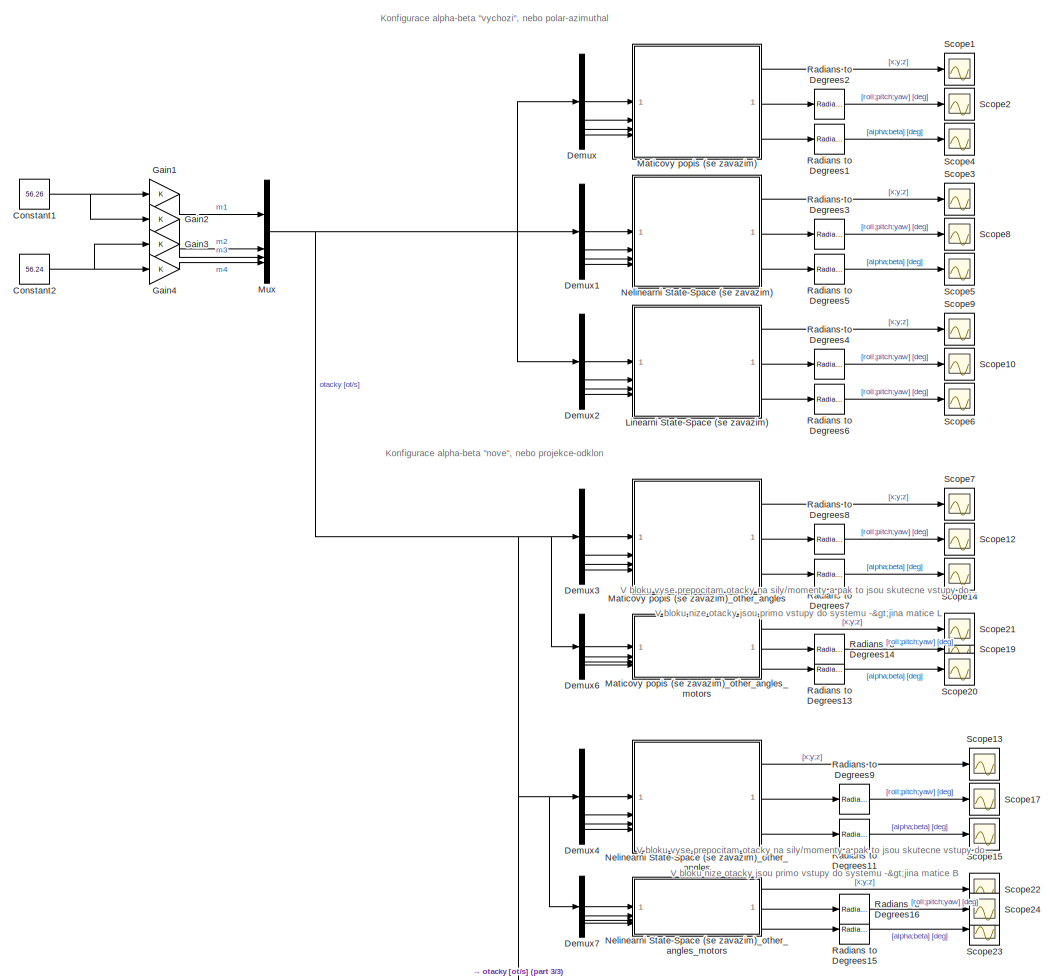
[diagram: root canvas - part 1/3, most of the canvas]
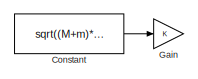
[diagram: root canvas - part 2/3, top left region]
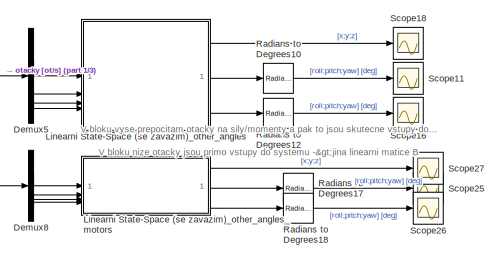
[diagram: root canvas - part 3/3, bottom right region]
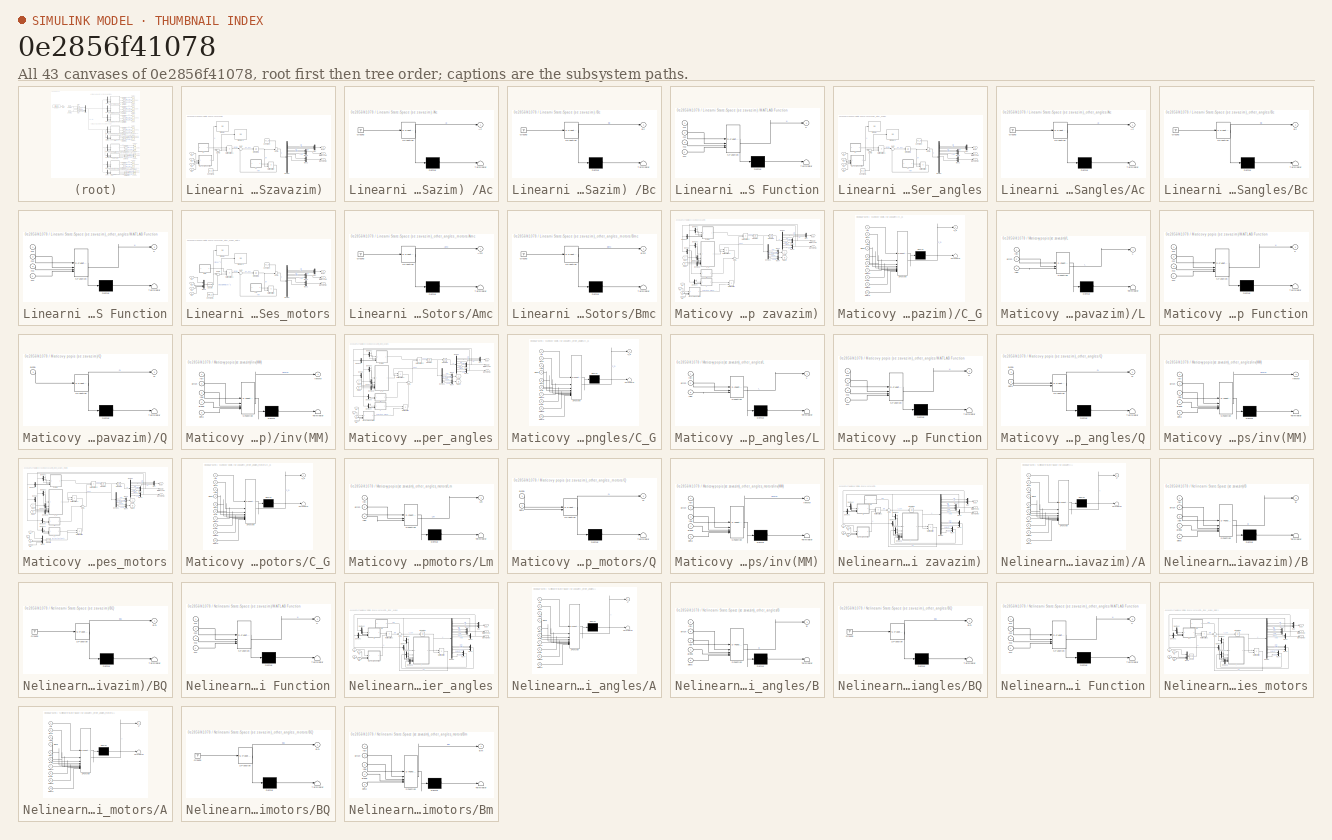
[diagram: thumbnail index - all 43 canvases of the model, root first then tree order]
MODEL slx_0e2856f41078
KIND model
CONFIG AbsTol = auto
CONFIG EnableMultiTasking = off
CONFIG FixedStep = 0.01
CONFIG MaxStep = auto
CONFIG MinStep = auto
CONFIG RelTol = 1e-3
CONFIG SampleTimeConstraint = Unconstrained
CONFIG SolverName = FixedStepAuto
CONFIG StartTime = 0.0
CONFIG StopTime = 2
BLOCK [Constant] Constant
  Value = sqrt((M+m)*g/4/k_thrust)
BLOCK [Constant] Constant1
  Value = 56.26
BLOCK [Constant] Constant2
  Value = 56.24
BLOCK [Demux] Demux
BLOCK [Demux] Demux1
BLOCK [Demux] Demux2
BLOCK [Demux] Demux3
BLOCK [Demux] Demux4
BLOCK [Demux] Demux5
BLOCK [Demux] Demux6
BLOCK [Demux] Demux7
BLOCK [Demux] Demux8
BLOCK [Gain] Gain
BLOCK [Gain] Gain1
BLOCK [Gain] Gain2
BLOCK [Gain] Gain3
BLOCK [Gain] Gain4
BLOCK [SubSystem] Linearni State-Space (se zavazim) 
BLOCK [SubSystem] Linearni State-Space (se zavazim) /Ac
  ErrorFcn = Stateflow.Translate.translate
  PermitHierarchicalResolution = ExplicitOnly
  SFBlockType = MATLAB Function
  TreatAsAtomicUnit = on
BLOCK [Demux] Linearni State-Space (se zavazim) /Ac/ Demux 
  Outputs = 1
BLOCK [Ground] Linearni State-Space (se zavazim) /Ac/ Ground 
BLOCK [S-Function] Linearni State-Space (se zavazim) /Ac/ SFunction 
  EnableBusSupport = on
  FunctionName = sf_sfun
  Parameters = Ip,M,d,g,m
  PortCounts = [1 2]
  SFcnIsStateOwnerBlock = off
  SFunctionDeploymentMode = off
  Tag = Stateflow S-Function 17
BLOCK [Terminator] Linearni State-Space (se zavazim) /Ac/ Terminator 
BLOCK [Outport] Linearni State-Space (se zavazim) /Ac/Ac
BLOCK [SubSystem] Linearni State-Space (se zavazim) /Bc
  ErrorFcn = Stateflow.Translate.translate
  PermitHierarchicalResolution = ExplicitOnly
  SFBlockType = MATLAB Function
  TreatAsAtomicUnit = on
BLOCK [Demux] Linearni State-Space (se zavazim) /Bc/ Demux 
  Outputs = 1
BLOCK [Ground] Linearni State-Space (se zavazim) /Bc/ Ground 
BLOCK [S-Function] Linearni State-Space (se zavazim) /Bc/ SFunction 
  EnableBusSupport = on
  FunctionName = sf_sfun
  Parameters = Ixx,Iyy,Izz,M,m
  PortCounts = [1 2]
  SFcnIsStateOwnerBlock = off
  SFunctionDeploymentMode = off
  Tag = Stateflow S-Function 12
BLOCK [Terminator] Linearni State-Space (se zavazim) /Bc/ Terminator 
BLOCK [Outport] Linearni State-Space (se zavazim) /Bc/Bc
BLOCK [Constant] Linearni State-Space (se zavazim) /Constant
  Value = Xs_p
BLOCK [Constant] Linearni State-Space (se zavazim) /Constant1
  Value = Us_p
BLOCK [Demux] Linearni State-Space (se zavazim) /Demux
  Outputs = 16
BLOCK [Display] Linearni State-Space (se zavazim) /Display
  Decimation = 1
BLOCK [Display] Linearni State-Space (se zavazim) /Display1
  Decimation = 1
BLOCK [Integrator] Linearni State-Space (se zavazim) /Integrator1
  InitialCondition = Xinit_ss
BLOCK [SubSystem] Linearni State-Space (se zavazim) /MATLAB Function
  ErrorFcn = Stateflow.Translate.translate
  PermitHierarchicalResolution = ExplicitOnly
  SFBlockType = MATLAB Function
  TreatAsAtomicUnit = on
BLOCK [Demux] Linearni State-Space (se zavazim) /MATLAB Function/ Demux 
  Outputs = 1
BLOCK [S-Function] Linearni State-Space (se zavazim) /MATLAB Function/ SFunction 
  EnableBusSupport = on
  FunctionName = sf_sfun
  Parameters = b_moment,k_thrust,l
  PortCounts = [4 2]
  SFcnIsStateOwnerBlock = off
  SFunctionDeploymentMode = off
  Tag = Stateflow S-Function 16
BLOCK [Terminator] Linearni State-Space (se zavazim) /MATLAB Function/ Terminator 
BLOCK [Inport] Linearni State-Space (se zavazim) /MATLAB Function/m1
BLOCK [Inport] Linearni State-Space (se zavazim) /MATLAB Function/m2
  Port = 2
BLOCK [Inport] Linearni State-Space (se zavazim) /MATLAB Function/m3
  Port = 3
BLOCK [Inport] Linearni State-Space (se zavazim) /MATLAB Function/m4
  Port = 4
BLOCK [Outport] Linearni State-Space (se zavazim) /MATLAB Function/u
BLOCK [Product] Linearni State-Space (se zavazim) /MatrixMultiply
  Multiplication = Matrix(*)
BLOCK [Product] Linearni State-Space (se zavazim) /MatrixMultiply1
  Multiplication = Matrix(*)
BLOCK [Mux] Linearni State-Space (se zavazim) /Mux
  DisplayOption = bar
  Inputs = 3
BLOCK [Mux] Linearni State-Space (se zavazim) /Mux1
  DisplayOption = bar
  Inputs = 3
BLOCK [Mux] Linearni State-Space (se zavazim) /Mux2
  DisplayOption = bar
  Inputs = 2
BLOCK [Sum] Linearni State-Space (se zavazim) /Sum
  Inputs = |++
BLOCK [Sum] Linearni State-Space (se zavazim) /Sum1
  Inputs = ++|
BLOCK [Sum] Linearni State-Space (se zavazim) /Sum2
  Inputs = |+-
BLOCK [Outport] Linearni State-Space (se zavazim) /[alpha;beta]
  Port = 3
BLOCK [Outport] Linearni State-Space (se zavazim) /[roll;pitch;yaw]
  Port = 2
BLOCK [Outport] Linearni State-Space (se zavazim) /[x;y;z]
BLOCK [Inport] Linearni State-Space (se zavazim) /m1
BLOCK [Inport] Linearni State-Space (se zavazim) /m2
  Port = 2
BLOCK [Inport] Linearni State-Space (se zavazim) /m3
  Port = 3
BLOCK [Inport] Linearni State-Space (se zavazim) /m4
  Port = 4
BLOCK [SubSystem] Linearni State-Space (se zavazim)_other_angles
BLOCK [SubSystem] Linearni State-Space (se zavazim)_other_angles/Ac
  ErrorFcn = Stateflow.Translate.translate
  PermitHierarchicalResolution = ExplicitOnly
  SFBlockType = MATLAB Function
  TreatAsAtomicUnit = on
BLOCK [Demux] Linearni State-Space (se zavazim)_other_angles/Ac/ Demux 
  Outputs = 1
BLOCK [Ground] Linearni State-Space (se zavazim)_other_angles/Ac/ Ground 
BLOCK [S-Function] Linearni State-Space (se zavazim)_other_angles/Ac/ SFunction 
  EnableBusSupport = on
  FunctionName = sf_sfun
  Parameters = Ip,M,d,g,m
  PortCounts = [1 2]
  SFcnIsStateOwnerBlock = off
  SFunctionDeploymentMode = off
  Tag = Stateflow S-Function 4
BLOCK [Terminator] Linearni State-Space (se zavazim)_other_angles/Ac/ Terminator 
BLOCK [Outport] Linearni State-Space (se zavazim)_other_angles/Ac/Ac
BLOCK [SubSystem] Linearni State-Space (se zavazim)_other_angles/Bc
  ErrorFcn = Stateflow.Translate.translate
  PermitHierarchicalResolution = ExplicitOnly
  SFBlockType = MATLAB Function
  TreatAsAtomicUnit = on
BLOCK [Demux] Linearni State-Space (se zavazim)_other_angles/Bc/ Demux 
  Outputs = 1
BLOCK [Ground] Linearni State-Space (se zavazim)_other_angles/Bc/ Ground 
BLOCK [S-Function] Linearni State-Space (se zavazim)_other_angles/Bc/ SFunction 
  EnableBusSupport = on
  FunctionName = sf_sfun
  Parameters = Ixx,Iyy,Izz,M,m
  PortCounts = [1 2]
  SFcnIsStateOwnerBlock = off
  SFunctionDeploymentMode = off
  Tag = Stateflow S-Function 5
BLOCK [Terminator] Linearni State-Space (se zavazim)_other_angles/Bc/ Terminator 
BLOCK [Outport] Linearni State-Space (se zavazim)_other_angles/Bc/Bc
BLOCK [Constant] Linearni State-Space (se zavazim)_other_angles/Constant
  Value = Xs_p
BLOCK [Constant] Linearni State-Space (se zavazim)_other_angles/Constant1
  Value = Us_p
BLOCK [Demux] Linearni State-Space (se zavazim)_other_angles/Demux
  Outputs = 16
BLOCK [Display] Linearni State-Space (se zavazim)_other_angles/Display
  Decimation = 1
BLOCK [Display] Linearni State-Space (se zavazim)_other_angles/Display1
  Decimation = 1
BLOCK [Integrator] Linearni State-Space (se zavazim)_other_angles/Integrator1
  InitialCondition = Xinit_ss
BLOCK [SubSystem] Linearni State-Space (se zavazim)_other_angles/MATLAB Function
  ErrorFcn = Stateflow.Translate.translate
  PermitHierarchicalResolution = ExplicitOnly
  SFBlockType = MATLAB Function
  TreatAsAtomicUnit = on
BLOCK [Demux] Linearni State-Space (se zavazim)_other_angles/MATLAB Function/ Demux 
  Outputs = 1
BLOCK [S-Function] Linearni State-Space (se zavazim)_other_angles/MATLAB Function/ SFunction 
  EnableBusSupport = on
  FunctionName = sf_sfun
  Parameters = b_moment,k_thrust,l
  PortCounts = [4 2]
  SFcnIsStateOwnerBlock = off
  SFunctionDeploymentMode = off
  Tag = Stateflow S-Function 6
BLOCK [Terminator] Linearni State-Space (se zavazim)_other_angles/MATLAB Function/ Terminator 
BLOCK [Inport] Linearni State-Space (se zavazim)_other_angles/MATLAB Function/m1
BLOCK [Inport] Linearni State-Space (se zavazim)_other_angles/MATLAB Function/m2
  Port = 2
BLOCK [Inport] Linearni State-Space (se zavazim)_other_angles/MATLAB Function/m3
  Port = 3
BLOCK [Inport] Linearni State-Space (se zavazim)_other_angles/MATLAB Function/m4
  Port = 4
BLOCK [Outport] Linearni State-Space (se zavazim)_other_angles/MATLAB Function/u
BLOCK [Product] Linearni State-Space (se zavazim)_other_angles/MatrixMultiply
  Multiplication = Matrix(*)
BLOCK [Product] Linearni State-Space (se zavazim)_other_angles/MatrixMultiply1
  Multiplication = Matrix(*)
BLOCK [Mux] Linearni State-Space (se zavazim)_other_angles/Mux
  DisplayOption = bar
  Inputs = 3
BLOCK [Mux] Linearni State-Space (se zavazim)_other_angles/Mux1
  DisplayOption = bar
  Inputs = 3
BLOCK [Mux] Linearni State-Space (se zavazim)_other_angles/Mux2
  DisplayOption = bar
  Inputs = 2
BLOCK [Sum] Linearni State-Space (se zavazim)_other_angles/Sum
  Inputs = |++
BLOCK [Sum] Linearni State-Space (se zavazim)_other_angles/Sum1
  Inputs = ++|
BLOCK [Sum] Linearni State-Space (se zavazim)_other_angles/Sum2
  Inputs = |+-
BLOCK [Outport] Linearni State-Space (se zavazim)_other_angles/[alpha;beta]
  Port = 3
BLOCK [Outport] Linearni State-Space (se zavazim)_other_angles/[roll;pitch;yaw]
  Port = 2
BLOCK [Outport] Linearni State-Space (se zavazim)_other_angles/[x;y;z]
BLOCK [Inport] Linearni State-Space (se zavazim)_other_angles/m1
BLOCK [Inport] Linearni State-Space (se zavazim)_other_angles/m2
  Port = 2
BLOCK [Inport] Linearni State-Space (se zavazim)_other_angles/m3
  Port = 3
BLOCK [Inport] Linearni State-Space (se zavazim)_other_angles/m4
  Port = 4
BLOCK [SubSystem] Linearni State-Space (se zavazim)_other_angles_motors
BLOCK [SubSystem] Linearni State-Space (se zavazim)_other_angles_motors/Amc
  ErrorFcn = Stateflow.Translate.translate
  PermitHierarchicalResolution = ExplicitOnly
  SFBlockType = MATLAB Function
  TreatAsAtomicUnit = on
BLOCK [Demux] Linearni State-Space (se zavazim)_other_angles_motors/Amc/ Demux 
  Outputs = 1
BLOCK [Ground] Linearni State-Space (se zavazim)_other_angles_motors/Amc/ Ground 
BLOCK [S-Function] Linearni State-Space (se zavazim)_other_angles_motors/Amc/ SFunction 
  EnableBusSupport = on
  FunctionName = sf_sfun
  Parameters = M,d,g,m
  PortCounts = [1 2]
  SFcnIsStateOwnerBlock = off
  SFunctionDeploymentMode = off
  Tag = Stateflow S-Function 32
BLOCK [Terminator] Linearni State-Space (se zavazim)_other_angles_motors/Amc/ Terminator 
BLOCK [Outport] Linearni State-Space (se zavazim)_other_angles_motors/Amc/Amc
BLOCK [SubSystem] Linearni State-Space (se zavazim)_other_angles_motors/Bmc
  ErrorFcn = Stateflow.Translate.translate
  PermitHierarchicalResolution = ExplicitOnly
  SFBlockType = MATLAB Function
  TreatAsAtomicUnit = on
BLOCK [Demux] Linearni State-Space (se zavazim)_other_angles_motors/Bmc/ Demux 
  Outputs = 1
BLOCK [Ground] Linearni State-Space (se zavazim)_other_angles_motors/Bmc/ Ground 
BLOCK [S-Function] Linearni State-Space (se zavazim)_other_angles_motors/Bmc/ SFunction 
  EnableBusSupport = on
  FunctionName = sf_sfun
  Parameters = Ixx,Iyy,Izz,M,b_moment,k_thrust,l,m
  PortCounts = [1 2]
  SFcnIsStateOwnerBlock = off
  SFunctionDeploymentMode = off
  Tag = Stateflow S-Function 33
BLOCK [Terminator] Linearni State-Space (se zavazim)_other_angles_motors/Bmc/ Terminator 
BLOCK [Outport] Linearni State-Space (se zavazim)_other_angles_motors/Bmc/Bmc
BLOCK [Constant] Linearni State-Space (se zavazim)_other_angles_motors/Constant
  Value = Xs_p
BLOCK [Constant] Linearni State-Space (se zavazim)_other_angles_motors/Constant1
  Value = Ums_p
BLOCK [Demux] Linearni State-Space (se zavazim)_other_angles_motors/Demux
  Outputs = 16
BLOCK [Display] Linearni State-Space (se zavazim)_other_angles_motors/Display
  Decimation = 1
BLOCK [Display] Linearni State-Space (se zavazim)_other_angles_motors/Display1
  Decimation = 1
BLOCK [Integrator] Linearni State-Space (se zavazim)_other_angles_motors/Integrator1
  InitialCondition = Xinit_ss
BLOCK [Product] Linearni State-Space (se zavazim)_other_angles_motors/MatrixMultiply
  Multiplication = Matrix(*)
BLOCK [Product] Linearni State-Space (se zavazim)_other_angles_motors/MatrixMultiply1
  Multiplication = Matrix(*)
BLOCK [Mux] Linearni State-Space (se zavazim)_other_angles_motors/Mux
  DisplayOption = bar
  Inputs = 3
BLOCK [Mux] Linearni State-Space (se zavazim)_other_angles_motors/Mux1
  DisplayOption = bar
  Inputs = 3
BLOCK [Mux] Linearni State-Space (se zavazim)_other_angles_motors/Mux2
  DisplayOption = bar
  Inputs = 2
BLOCK [Mux] Linearni State-Space (se zavazim)_other_angles_motors/Mux3
  DisplayOption = bar
BLOCK [Math] Linearni State-Space (se zavazim)_other_angles_motors/Square
  Operator = square
BLOCK [Sum] Linearni State-Space (se zavazim)_other_angles_motors/Sum
  Inputs = |++
BLOCK [Sum] Linearni State-Space (se zavazim)_other_angles_motors/Sum1
  Inputs = ++|
BLOCK [Sum] Linearni State-Space (se zavazim)_other_angles_motors/Sum2
  Inputs = |+-
BLOCK [Outport] Linearni State-Space (se zavazim)_other_angles_motors/[alpha;beta]
  Port = 3
BLOCK [Outport] Linearni State-Space (se zavazim)_other_angles_motors/[roll;pitch;yaw]
  Port = 2
BLOCK [Outport] Linearni State-Space (se zavazim)_other_angles_motors/[x;y;z]
BLOCK [Inport] Linearni State-Space (se zavazim)_other_angles_motors/m1
BLOCK [Inport] Linearni State-Space (se zavazim)_other_angles_motors/m2
  Port = 2
BLOCK [Inport] Linearni State-Space (se zavazim)_other_angles_motors/m3
  Port = 3
BLOCK [Inport] Linearni State-Space (se zavazim)_other_angles_motors/m4
  Port = 4
BLOCK [SubSystem] Maticovy popis (se zavazim)
BLOCK [SubSystem] Maticovy popis (se zavazim)/C_G
  ErrorFcn = Stateflow.Translate.translate
  PermitHierarchicalResolution = ExplicitOnly
  SFBlockType = MATLAB Function
  TreatAsAtomicUnit = on
BLOCK [Demux] Maticovy popis (se zavazim)/C_G/ Demux 
  Outputs = 1
BLOCK [S-Function] Maticovy popis (se zavazim)/C_G/ SFunction 
  EnableBusSupport = on
  FunctionName = sf_sfun
  Parameters = Ixx,Iyy,Izz,d,m
  PortCounts = [10 2]
  SFcnIsStateOwnerBlock = off
  SFunctionDeploymentMode = off
  Tag = Stateflow S-Function 1
BLOCK [Terminator] Maticovy popis (se zavazim)/C_G/ Terminator 
BLOCK [Outport] Maticovy popis (se zavazim)/C_G/C_G
BLOCK [Inport] Maticovy popis (se zavazim)/C_G/alpha
  Port = 4
BLOCK [Inport] Maticovy popis (se zavazim)/C_G/beta
  Port = 5
BLOCK [Inport] Maticovy popis (se zavazim)/C_G/dalpha
  Port = 9
BLOCK [Inport] Maticovy popis (se zavazim)/C_G/dbeta
  Port = 10
BLOCK [Inport] Maticovy popis (se zavazim)/C_G/dpitch
  Port = 7
BLOCK [Inport] Maticovy popis (se zavazim)/C_G/droll
  Port = 6
BLOCK [Inport] Maticovy popis (se zavazim)/C_G/dyaw
  Port = 8
BLOCK [Inport] Maticovy popis (se zavazim)/C_G/pitch
  Port = 2
BLOCK [Inport] Maticovy popis (se zavazim)/C_G/roll
BLOCK [Inport] Maticovy popis (se zavazim)/C_G/yaw
  Port = 3
BLOCK [Demux] Maticovy popis (se zavazim)/Demux
  Outputs = 8
BLOCK [Demux] Maticovy popis (se zavazim)/Demux1
  Outputs = 8
BLOCK [Demux] Maticovy popis (se zavazim)/Demux2
  Outputs = 3
BLOCK [Demux] Maticovy popis (se zavazim)/Demux3
  Outputs = 3
BLOCK [Demux] Maticovy popis (se zavazim)/Demux4
  Outputs = 3
BLOCK [Demux] Maticovy popis (se zavazim)/Demux5
  Outputs = 3
BLOCK [Demux] Maticovy popis (se zavazim)/Demux6
  Outputs = 2
BLOCK [Demux] Maticovy popis (se zavazim)/Demux7
  Outputs = 2
BLOCK [Demux] Maticovy popis (se zavazim)/Demux8
  Outputs = 2
BLOCK [From] Maticovy popis (se zavazim)/From
BLOCK [From] Maticovy popis (se zavazim)/From1
  GotoTag = B
BLOCK [Goto] Maticovy popis (se zavazim)/Goto
BLOCK [Goto] Maticovy popis (se zavazim)/Goto1
  GotoTag = B
BLOCK [Integrator] Maticovy popis (se zavazim)/Integrator
  InitialCondition = [0;0;0;0;0;0;0;0]
BLOCK [Integrator] Maticovy popis (se zavazim)/Integrator1
  InitialCondition = Xinit_matrix
BLOCK [SubSystem] Maticovy popis (se zavazim)/L
  ErrorFcn = Stateflow.Translate.translate
  PermitHierarchicalResolution = ExplicitOnly
  SFBlockType = MATLAB Function
  TreatAsAtomicUnit = on
BLOCK [Demux] Maticovy popis (se zavazim)/L/ Demux 
  Outputs = 1
BLOCK [S-Function] Maticovy popis (se zavazim)/L/ SFunction 
  EnableBusSupport = on
  FunctionName = sf_sfun
  PortCounts = [3 2]
  SFcnIsStateOwnerBlock = off
  SFunctionDeploymentMode = off
  Tag = Stateflow S-Function 7
BLOCK [Terminator] Maticovy popis (se zavazim)/L/ Terminator 
BLOCK [Outport] Maticovy popis (se zavazim)/L/L
BLOCK [Inport] Maticovy popis (se zavazim)/L/pitch
  Port = 2
BLOCK [Inport] Maticovy popis (se zavazim)/L/roll
BLOCK [Inport] Maticovy popis (se zavazim)/L/yaw
  Port = 3
BLOCK [SubSystem] Maticovy popis (se zavazim)/MATLAB Function
  ErrorFcn = Stateflow.Translate.translate
  PermitHierarchicalResolution = ExplicitOnly
  SFBlockType = MATLAB Function
  TreatAsAtomicUnit = on
BLOCK [Demux] Maticovy popis (se zavazim)/MATLAB Function/ Demux 
  Outputs = 1
BLOCK [S-Function] Maticovy popis (se zavazim)/MATLAB Function/ SFunction 
  EnableBusSupport = on
  FunctionName = sf_sfun
  Parameters = b_moment,k_thrust,l
  PortCounts = [4 2]
  SFcnIsStateOwnerBlock = off
  SFunctionDeploymentMode = off
  Tag = Stateflow S-Function 8
BLOCK [Terminator] Maticovy popis (se zavazim)/MATLAB Function/ Terminator 
BLOCK [Inport] Maticovy popis (se zavazim)/MATLAB Function/m1
BLOCK [Inport] Maticovy popis (se zavazim)/MATLAB Function/m2
  Port = 2
BLOCK [Inport] Maticovy popis (se zavazim)/MATLAB Function/m3
  Port = 3
BLOCK [Inport] Maticovy popis (se zavazim)/MATLAB Function/m4
  Port = 4
BLOCK [Outport] Maticovy popis (se zavazim)/MATLAB Function/u
BLOCK [Product] Maticovy popis (se zavazim)/MatrixMultiply
  Multiplication = Matrix(*)
BLOCK [Product] Maticovy popis (se zavazim)/MatrixMultiply1
  Multiplication = Matrix(*)
BLOCK [Product] Maticovy popis (se zavazim)/MatrixMultiply2
  Multiplication = Matrix(*)
BLOCK [Mux] Maticovy popis (se zavazim)/Mux
  DisplayOption = bar
  Inputs = 3
BLOCK [Mux] Maticovy popis (se zavazim)/Mux1
  DisplayOption = bar
  Inputs = 3
BLOCK [Mux] Maticovy popis (se zavazim)/Mux2
  DisplayOption = bar
  Inputs = 3
BLOCK [Mux] Maticovy popis (se zavazim)/Mux3
  DisplayOption = bar
  Inputs = 2
BLOCK [Mux] Maticovy popis (se zavazim)/Mux4
  DisplayOption = bar
  Inputs = 2
BLOCK [SubSystem] Maticovy popis (se zavazim)/Q
  ErrorFcn = Stateflow.Translate.translate
  PermitHierarchicalResolution = ExplicitOnly
  SFBlockType = MATLAB Function
  TreatAsAtomicUnit = on
BLOCK [Demux] Maticovy popis (se zavazim)/Q/ Demux 
  Outputs = 1
BLOCK [S-Function] Maticovy popis (se zavazim)/Q/ SFunction 
  EnableBusSupport = on
  FunctionName = sf_sfun
  Parameters = M,d,g,m
  PortCounts = [1 2]
  SFcnIsStateOwnerBlock = off
  SFunctionDeploymentMode = off
  Tag = Stateflow S-Function 3
BLOCK [Terminator] Maticovy popis (se zavazim)/Q/ Terminator 
BLOCK [Outport] Maticovy popis (se zavazim)/Q/Q
BLOCK [Inport] Maticovy popis (se zavazim)/Q/alpha
BLOCK [Sum] Maticovy popis (se zavazim)/Sum
  Inputs = --+
BLOCK [Outport] Maticovy popis (se zavazim)/[alpha;beta]
  Port = 3
BLOCK [Outport] Maticovy popis (se zavazim)/[roll;pitch;yaw]
  Port = 2
BLOCK [Outport] Maticovy popis (se zavazim)/[x;y;z]
BLOCK [SubSystem] Maticovy popis (se zavazim)/inv(MM)
  ErrorFcn = Stateflow.Translate.translate
  PermitHierarchicalResolution = ExplicitOnly
  SFBlockType = MATLAB Function
  TreatAsAtomicUnit = on
BLOCK [Demux] Maticovy popis (se zavazim)/inv(MM)/ Demux 
  Outputs = 1
BLOCK [S-Function] Maticovy popis (se zavazim)/inv(MM)/ SFunction 
  EnableBusSupport = on
  FunctionName = sf_sfun
  Parameters = Ip,Ixx,Iyy,Izz,M,d,m
  PortCounts = [5 2]
  SFcnIsStateOwnerBlock = off
  SFunctionDeploymentMode = off
  Tag = Stateflow S-Function 2
BLOCK [Terminator] Maticovy popis (se zavazim)/inv(MM)/ Terminator 
BLOCK [Inport] Maticovy popis (se zavazim)/inv(MM)/alpha
  Port = 4
BLOCK [Inport] Maticovy popis (se zavazim)/inv(MM)/beta
  Port = 5
BLOCK [Outport] Maticovy popis (se zavazim)/inv(MM)/invMM
BLOCK [Inport] Maticovy popis (se zavazim)/inv(MM)/pitch
  Port = 2
BLOCK [Inport] Maticovy popis (se zavazim)/inv(MM)/roll
BLOCK [Inport] Maticovy popis (se zavazim)/inv(MM)/yaw
  Port = 3
BLOCK [Inport] Maticovy popis (se zavazim)/m1
BLOCK [Inport] Maticovy popis (se zavazim)/m2
  Port = 2
BLOCK [Inport] Maticovy popis (se zavazim)/m3
  Port = 3
BLOCK [Inport] Maticovy popis (se zavazim)/m4
  Port = 4
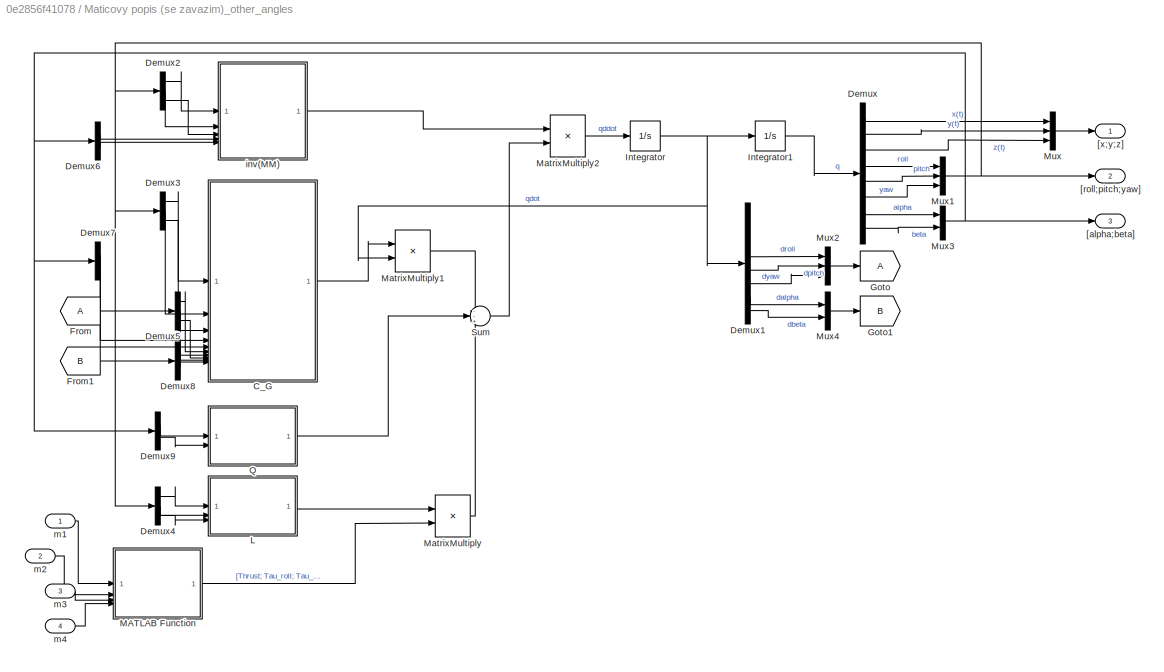
BLOCK [SubSystem] Maticovy popis (se zavazim)_other_angles
BLOCK [SubSystem] Maticovy popis (se zavazim)_other_angles/C_G
  ErrorFcn = Stateflow.Translate.translate
  PermitHierarchicalResolution = ExplicitOnly
  SFBlockType = MATLAB Function
  TreatAsAtomicUnit = on
BLOCK [Demux] Maticovy popis (se zavazim)_other_angles/C_G/ Demux 
  Outputs = 1
BLOCK [S-Function] Maticovy popis (se zavazim)_other_angles/C_G/ SFunction 
  EnableBusSupport = on
  FunctionName = sf_sfun
  Parameters = Ixx,Iyy,Izz,d,m
  PortCounts = [10 2]
  SFcnIsStateOwnerBlock = off
  SFunctionDeploymentMode = off
  Tag = Stateflow S-Function 14
BLOCK [Terminator] Maticovy popis (se zavazim)_other_angles/C_G/ Terminator 
BLOCK [Outport] Maticovy popis (se zavazim)_other_angles/C_G/C_G
BLOCK [Inport] Maticovy popis (se zavazim)_other_angles/C_G/alpha
  Port = 4
BLOCK [Inport] Maticovy popis (se zavazim)_other_angles/C_G/beta
  Port = 5
BLOCK [Inport] Maticovy popis (se zavazim)_other_angles/C_G/dalpha
  Port = 9
BLOCK [Inport] Maticovy popis (se zavazim)_other_angles/C_G/dbeta
  Port = 10
BLOCK [Inport] Maticovy popis (se zavazim)_other_angles/C_G/dpitch
  Port = 7
BLOCK [Inport] Maticovy popis (se zavazim)_other_angles/C_G/droll
  Port = 6
BLOCK [Inport] Maticovy popis (se zavazim)_other_angles/C_G/dyaw
  Port = 8
BLOCK [Inport] Maticovy popis (se zavazim)_other_angles/C_G/pitch
  Port = 2
BLOCK [Inport] Maticovy popis (se zavazim)_other_angles/C_G/roll
BLOCK [Inport] Maticovy popis (se zavazim)_other_angles/C_G/yaw
  Port = 3
BLOCK [Demux] Maticovy popis (se zavazim)_other_angles/Demux
  Outputs = 8
BLOCK [Demux] Maticovy popis (se zavazim)_other_angles/Demux1
  Outputs = 8
BLOCK [Demux] Maticovy popis (se zavazim)_other_angles/Demux2
  Outputs = 3
BLOCK [Demux] Maticovy popis (se zavazim)_other_angles/Demux3
  Outputs = 3
BLOCK [Demux] Maticovy popis (se zavazim)_other_angles/Demux4
  Outputs = 3
BLOCK [Demux] Maticovy popis (se zavazim)_other_angles/Demux5
  Outputs = 3
BLOCK [Demux] Maticovy popis (se zavazim)_other_angles/Demux6
  Outputs = 2
BLOCK [Demux] Maticovy popis (se zavazim)_other_angles/Demux7
  Outputs = 2
BLOCK [Demux] Maticovy popis (se zavazim)_other_angles/Demux8
  Outputs = 2
BLOCK [Demux] Maticovy popis (se zavazim)_other_angles/Demux9
  Outputs = 2
BLOCK [From] Maticovy popis (se zavazim)_other_angles/From
BLOCK [From] Maticovy popis (se zavazim)_other_angles/From1
  GotoTag = B
BLOCK [Goto] Maticovy popis (se zavazim)_other_angles/Goto
BLOCK [Goto] Maticovy popis (se zavazim)_other_angles/Goto1
  GotoTag = B
BLOCK [Integrator] Maticovy popis (se zavazim)_other_angles/Integrator
  InitialCondition = [0;0;0;0;0;0;0;0]
BLOCK [Integrator] Maticovy popis (se zavazim)_other_angles/Integrator1
  InitialCondition = Xinit_matrix
BLOCK [SubSystem] Maticovy popis (se zavazim)_other_angles/L
  ErrorFcn = Stateflow.Translate.translate
  PermitHierarchicalResolution = ExplicitOnly
  SFBlockType = MATLAB Function
  TreatAsAtomicUnit = on
BLOCK [Demux] Maticovy popis (se zavazim)_other_angles/L/ Demux 
  Outputs = 1
BLOCK [S-Function] Maticovy popis (se zavazim)_other_angles/L/ SFunction 
  EnableBusSupport = on
  FunctionName = sf_sfun
  PortCounts = [3 2]
  SFcnIsStateOwnerBlock = off
  SFunctionDeploymentMode = off
  Tag = Stateflow S-Function 15
BLOCK [Terminator] Maticovy popis (se zavazim)_other_angles/L/ Terminator 
BLOCK [Outport] Maticovy popis (se zavazim)_other_angles/L/L
BLOCK [Inport] Maticovy popis (se zavazim)_other_angles/L/pitch
  Port = 2
BLOCK [Inport] Maticovy popis (se zavazim)_other_angles/L/roll
BLOCK [Inport] Maticovy popis (se zavazim)_other_angles/L/yaw
  Port = 3
BLOCK [SubSystem] Maticovy popis (se zavazim)_other_angles/MATLAB Function
  ErrorFcn = Stateflow.Translate.translate
  PermitHierarchicalResolution = ExplicitOnly
  SFBlockType = MATLAB Function
  TreatAsAtomicUnit = on
BLOCK [Demux] Maticovy popis (se zavazim)_other_angles/MATLAB Function/ Demux 
  Outputs = 1
BLOCK [S-Function] Maticovy popis (se zavazim)_other_angles/MATLAB Function/ SFunction 
  EnableBusSupport = on
  FunctionName = sf_sfun
  Parameters = b_moment,k_thrust,l
  PortCounts = [4 2]
  SFcnIsStateOwnerBlock = off
  SFunctionDeploymentMode = off
  Tag = Stateflow S-Function 18
BLOCK [Terminator] Maticovy popis (se zavazim)_other_angles/MATLAB Function/ Terminator 
BLOCK [Inport] Maticovy popis (se zavazim)_other_angles/MATLAB Function/m1
BLOCK [Inport] Maticovy popis (se zavazim)_other_angles/MATLAB Function/m2
  Port = 2
BLOCK [Inport] Maticovy popis (se zavazim)_other_angles/MATLAB Function/m3
  Port = 3
BLOCK [Inport] Maticovy popis (se zavazim)_other_angles/MATLAB Function/m4
  Port = 4
BLOCK [Outport] Maticovy popis (se zavazim)_other_angles/MATLAB Function/u
BLOCK [Product] Maticovy popis (se zavazim)_other_angles/MatrixMultiply
  Multiplication = Matrix(*)
BLOCK [Product] Maticovy popis (se zavazim)_other_angles/MatrixMultiply1
  Multiplication = Matrix(*)
BLOCK [Product] Maticovy popis (se zavazim)_other_angles/MatrixMultiply2
  Multiplication = Matrix(*)
BLOCK [Mux] Maticovy popis (se zavazim)_other_angles/Mux
  DisplayOption = bar
  Inputs = 3
BLOCK [Mux] Maticovy popis (se zavazim)_other_angles/Mux1
  DisplayOption = bar
  Inputs = 3
BLOCK [Mux] Maticovy popis (se zavazim)_other_angles/Mux2
  DisplayOption = bar
  Inputs = 3
BLOCK [Mux] Maticovy popis (se zavazim)_other_angles/Mux3
  DisplayOption = bar
  Inputs = 2
BLOCK [Mux] Maticovy popis (se zavazim)_other_angles/Mux4
  DisplayOption = bar
  Inputs = 2
BLOCK [SubSystem] Maticovy popis (se zavazim)_other_angles/Q
  ErrorFcn = Stateflow.Translate.translate
  PermitHierarchicalResolution = ExplicitOnly
  SFBlockType = MATLAB Function
  TreatAsAtomicUnit = on
BLOCK [Demux] Maticovy popis (se zavazim)_other_angles/Q/ Demux 
  Outputs = 1
BLOCK [S-Function] Maticovy popis (se zavazim)_other_angles/Q/ SFunction 
  EnableBusSupport = on
  FunctionName = sf_sfun
  Parameters = M,d,g,m
  PortCounts = [2 2]
  SFcnIsStateOwnerBlock = off
  SFunctionDeploymentMode = off
  Tag = Stateflow S-Function 19
BLOCK [Terminator] Maticovy popis (se zavazim)_other_angles/Q/ Terminator 
BLOCK [Outport] Maticovy popis (se zavazim)_other_angles/Q/Q
BLOCK [Inport] Maticovy popis (se zavazim)_other_angles/Q/alpha
BLOCK [Inport] Maticovy popis (se zavazim)_other_angles/Q/beta
  Port = 2
BLOCK [Sum] Maticovy popis (se zavazim)_other_angles/Sum
  Inputs = --+
BLOCK [Outport] Maticovy popis (se zavazim)_other_angles/[alpha;beta]
  Port = 3
BLOCK [Outport] Maticovy popis (se zavazim)_other_angles/[roll;pitch;yaw]
  Port = 2
BLOCK [Outport] Maticovy popis (se zavazim)_other_angles/[x;y;z]
BLOCK [SubSystem] Maticovy popis (se zavazim)_other_angles/inv(MM)
  ErrorFcn = Stateflow.Translate.translate
  PermitHierarchicalResolution = ExplicitOnly
  SFBlockType = MATLAB Function
  TreatAsAtomicUnit = on
BLOCK [Demux] Maticovy popis (se zavazim)_other_angles/inv(MM)/ Demux 
  Outputs = 1
BLOCK [S-Function] Maticovy popis (se zavazim)_other_angles/inv(MM)/ SFunction 
  EnableBusSupport = on
  FunctionName = sf_sfun
  Parameters = Ip,Ixx,Iyy,Izz,M,d,m
  PortCounts = [5 2]
  SFcnIsStateOwnerBlock = off
  SFunctionDeploymentMode = off
  Tag = Stateflow S-Function 20
BLOCK [Terminator] Maticovy popis (se zavazim)_other_angles/inv(MM)/ Terminator 
BLOCK [Inport] Maticovy popis (se zavazim)_other_angles/inv(MM)/alpha
  Port = 4
BLOCK [Inport] Maticovy popis (se zavazim)_other_angles/inv(MM)/beta
  Port = 5
BLOCK [Outport] Maticovy popis (se zavazim)_other_angles/inv(MM)/invMM
BLOCK [Inport] Maticovy popis (se zavazim)_other_angles/inv(MM)/pitch
  Port = 2
BLOCK [Inport] Maticovy popis (se zavazim)_other_angles/inv(MM)/roll
BLOCK [Inport] Maticovy popis (se zavazim)_other_angles/inv(MM)/yaw
  Port = 3
BLOCK [Inport] Maticovy popis (se zavazim)_other_angles/m1
BLOCK [Inport] Maticovy popis (se zavazim)_other_angles/m2
  Port = 2
BLOCK [Inport] Maticovy popis (se zavazim)_other_angles/m3
  Port = 3
BLOCK [Inport] Maticovy popis (se zavazim)_other_angles/m4
  Port = 4
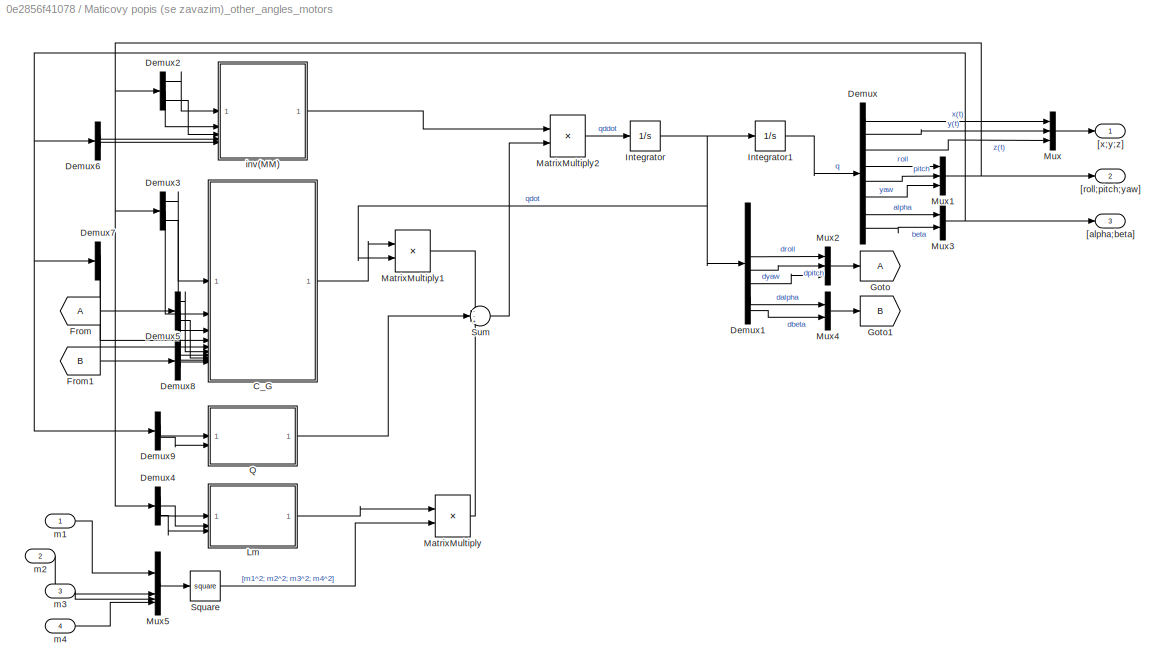
BLOCK [SubSystem] Maticovy popis (se zavazim)_other_angles_motors
BLOCK [SubSystem] Maticovy popis (se zavazim)_other_angles_motors/C_G
  ErrorFcn = Stateflow.Translate.translate
  PermitHierarchicalResolution = ExplicitOnly
  SFBlockType = MATLAB Function
  TreatAsAtomicUnit = on
BLOCK [Demux] Maticovy popis (se zavazim)_other_angles_motors/C_G/ Demux 
  Outputs = 1
BLOCK [S-Function] Maticovy popis (se zavazim)_other_angles_motors/C_G/ SFunction 
  EnableBusSupport = on
  FunctionName = sf_sfun
  Parameters = Ixx,Iyy,Izz,d,m
  PortCounts = [10 2]
  SFcnIsStateOwnerBlock = off
  SFunctionDeploymentMode = off
  Tag = Stateflow S-Function 25
BLOCK [Terminator] Maticovy popis (se zavazim)_other_angles_motors/C_G/ Terminator 
BLOCK [Outport] Maticovy popis (se zavazim)_other_angles_motors/C_G/C_G
BLOCK [Inport] Maticovy popis (se zavazim)_other_angles_motors/C_G/alpha
  Port = 4
BLOCK [Inport] Maticovy popis (se zavazim)_other_angles_motors/C_G/beta
  Port = 5
BLOCK [Inport] Maticovy popis (se zavazim)_other_angles_motors/C_G/dalpha
  Port = 9
BLOCK [Inport] Maticovy popis (se zavazim)_other_angles_motors/C_G/dbeta
  Port = 10
BLOCK [Inport] Maticovy popis (se zavazim)_other_angles_motors/C_G/dpitch
  Port = 7
BLOCK [Inport] Maticovy popis (se zavazim)_other_angles_motors/C_G/droll
  Port = 6
BLOCK [Inport] Maticovy popis (se zavazim)_other_angles_motors/C_G/dyaw
  Port = 8
BLOCK [Inport] Maticovy popis (se zavazim)_other_angles_motors/C_G/pitch
  Port = 2
BLOCK [Inport] Maticovy popis (se zavazim)_other_angles_motors/C_G/roll
BLOCK [Inport] Maticovy popis (se zavazim)_other_angles_motors/C_G/yaw
  Port = 3
BLOCK [Demux] Maticovy popis (se zavazim)_other_angles_motors/Demux
  Outputs = 8
BLOCK [Demux] Maticovy popis (se zavazim)_other_angles_motors/Demux1
  Outputs = 8
BLOCK [Demux] Maticovy popis (se zavazim)_other_angles_motors/Demux2
  Outputs = 3
BLOCK [Demux] Maticovy popis (se zavazim)_other_angles_motors/Demux3
  Outputs = 3
BLOCK [Demux] Maticovy popis (se zavazim)_other_angles_motors/Demux4
  Outputs = 3
BLOCK [Demux] Maticovy popis (se zavazim)_other_angles_motors/Demux5
  Outputs = 3
BLOCK [Demux] Maticovy popis (se zavazim)_other_angles_motors/Demux6
  Outputs = 2
BLOCK [Demux] Maticovy popis (se zavazim)_other_angles_motors/Demux7
  Outputs = 2
BLOCK [Demux] Maticovy popis (se zavazim)_other_angles_motors/Demux8
  Outputs = 2
BLOCK [Demux] Maticovy popis (se zavazim)_other_angles_motors/Demux9
  Outputs = 2
BLOCK [From] Maticovy popis (se zavazim)_other_angles_motors/From
BLOCK [From] Maticovy popis (se zavazim)_other_angles_motors/From1
  GotoTag = B
BLOCK [Goto] Maticovy popis (se zavazim)_other_angles_motors/Goto
BLOCK [Goto] Maticovy popis (se zavazim)_other_angles_motors/Goto1
  GotoTag = B
BLOCK [Integrator] Maticovy popis (se zavazim)_other_angles_motors/Integrator
  InitialCondition = [0;0;0;0;0;0;0;0]
BLOCK [Integrator] Maticovy popis (se zavazim)_other_angles_motors/Integrator1
  InitialCondition = Xinit_matrix
BLOCK [SubSystem] Maticovy popis (se zavazim)_other_angles_motors/Lm
  ErrorFcn = Stateflow.Translate.translate
  PermitHierarchicalResolution = ExplicitOnly
  SFBlockType = MATLAB Function
  TreatAsAtomicUnit = on
BLOCK [Demux] Maticovy popis (se zavazim)_other_angles_motors/Lm/ Demux 
  Outputs = 1
BLOCK [S-Function] Maticovy popis (se zavazim)_other_angles_motors/Lm/ SFunction 
  EnableBusSupport = on
  FunctionName = sf_sfun
  Parameters = b_moment,k_thrust,l
  PortCounts = [3 2]
  SFcnIsStateOwnerBlock = off
  SFunctionDeploymentMode = off
  Tag = Stateflow S-Function 26
BLOCK [Terminator] Maticovy popis (se zavazim)_other_angles_motors/Lm/ Terminator 
BLOCK [Outport] Maticovy popis (se zavazim)_other_angles_motors/Lm/Lm
BLOCK [Inport] Maticovy popis (se zavazim)_other_angles_motors/Lm/pitch
  Port = 2
BLOCK [Inport] Maticovy popis (se zavazim)_other_angles_motors/Lm/roll
BLOCK [Inport] Maticovy popis (se zavazim)_other_angles_motors/Lm/yaw
  Port = 3
BLOCK [Product] Maticovy popis (se zavazim)_other_angles_motors/MatrixMultiply
  Multiplication = Matrix(*)
BLOCK [Product] Maticovy popis (se zavazim)_other_angles_motors/MatrixMultiply1
  Multiplication = Matrix(*)
BLOCK [Product] Maticovy popis (se zavazim)_other_angles_motors/MatrixMultiply2
  Multiplication = Matrix(*)
BLOCK [Mux] Maticovy popis (se zavazim)_other_angles_motors/Mux
  DisplayOption = bar
  Inputs = 3
BLOCK [Mux] Maticovy popis (se zavazim)_other_angles_motors/Mux1
  DisplayOption = bar
  Inputs = 3
BLOCK [Mux] Maticovy popis (se zavazim)_other_angles_motors/Mux2
  DisplayOption = bar
  Inputs = 3
BLOCK [Mux] Maticovy popis (se zavazim)_other_angles_motors/Mux3
  DisplayOption = bar
  Inputs = 2
BLOCK [Mux] Maticovy popis (se zavazim)_other_angles_motors/Mux4
  DisplayOption = bar
  Inputs = 2
BLOCK [Mux] Maticovy popis (se zavazim)_other_angles_motors/Mux5
  DisplayOption = bar
BLOCK [SubSystem] Maticovy popis (se zavazim)_other_angles_motors/Q
  ErrorFcn = Stateflow.Translate.translate
  PermitHierarchicalResolution = ExplicitOnly
  SFBlockType = MATLAB Function
  TreatAsAtomicUnit = on
BLOCK [Demux] Maticovy popis (se zavazim)_other_angles_motors/Q/ Demux 
  Outputs = 1
BLOCK [S-Function] Maticovy popis (se zavazim)_other_angles_motors/Q/ SFunction 
  EnableBusSupport = on
  FunctionName = sf_sfun
  Parameters = M,d,g,m
  PortCounts = [2 2]
  SFcnIsStateOwnerBlock = off
  SFunctionDeploymentMode = off
  Tag = Stateflow S-Function 28
BLOCK [Terminator] Maticovy popis (se zavazim)_other_angles_motors/Q/ Terminator 
BLOCK [Outport] Maticovy popis (se zavazim)_other_angles_motors/Q/Q
BLOCK [Inport] Maticovy popis (se zavazim)_other_angles_motors/Q/alpha
BLOCK [Inport] Maticovy popis (se zavazim)_other_angles_motors/Q/beta
  Port = 2
BLOCK [Math] Maticovy popis (se zavazim)_other_angles_motors/Square
  Operator = square
BLOCK [Sum] Maticovy popis (se zavazim)_other_angles_motors/Sum
  Inputs = --+
BLOCK [Outport] Maticovy popis (se zavazim)_other_angles_motors/[alpha;beta]
  Port = 3
BLOCK [Outport] Maticovy popis (se zavazim)_other_angles_motors/[roll;pitch;yaw]
  Port = 2
BLOCK [Outport] Maticovy popis (se zavazim)_other_angles_motors/[x;y;z]
BLOCK [SubSystem] Maticovy popis (se zavazim)_other_angles_motors/inv(MM)
  ErrorFcn = Stateflow.Translate.translate
  PermitHierarchicalResolution = ExplicitOnly
  SFBlockType = MATLAB Function
  TreatAsAtomicUnit = on
BLOCK [Demux] Maticovy popis (se zavazim)_other_angles_motors/inv(MM)/ Demux 
  Outputs = 1
BLOCK [S-Function] Maticovy popis (se zavazim)_other_angles_motors/inv(MM)/ SFunction 
  EnableBusSupport = on
  FunctionName = sf_sfun
  Parameters = Ip,Ixx,Iyy,Izz,M,d,m
  PortCounts = [5 2]
  SFcnIsStateOwnerBlock = off
  SFunctionDeploymentMode = off
  Tag = Stateflow S-Function 29
BLOCK [Terminator] Maticovy popis (se zavazim)_other_angles_motors/inv(MM)/ Terminator 
BLOCK [Inport] Maticovy popis (se zavazim)_other_angles_motors/inv(MM)/alpha
  Port = 4
BLOCK [Inport] Maticovy popis (se zavazim)_other_angles_motors/inv(MM)/beta
  Port = 5
BLOCK [Outport] Maticovy popis (se zavazim)_other_angles_motors/inv(MM)/invMM
BLOCK [Inport] Maticovy popis (se zavazim)_other_angles_motors/inv(MM)/pitch
  Port = 2
BLOCK [Inport] Maticovy popis (se zavazim)_other_angles_motors/inv(MM)/roll
BLOCK [Inport] Maticovy popis (se zavazim)_other_angles_motors/inv(MM)/yaw
  Port = 3
BLOCK [Inport] Maticovy popis (se zavazim)_other_angles_motors/m1
BLOCK [Inport] Maticovy popis (se zavazim)_other_angles_motors/m2
  Port = 2
BLOCK [Inport] Maticovy popis (se zavazim)_other_angles_motors/m3
  Port = 3
BLOCK [Inport] Maticovy popis (se zavazim)_other_angles_motors/m4
  Port = 4
BLOCK [Mux] Mux
  DisplayOption = bar
BLOCK [SubSystem] Nelinearni State-Space (se zavazim)
BLOCK [SubSystem] Nelinearni State-Space (se zavazim)/A
  ErrorFcn = Stateflow.Translate.translate
  PermitHierarchicalResolution = ExplicitOnly
  SFBlockType = MATLAB Function
  TreatAsAtomicUnit = on
BLOCK [Demux] Nelinearni State-Space (se zavazim)/A/ Demux 
  Outputs = 1
BLOCK [S-Function] Nelinearni State-Space (se zavazim)/A/ SFunction 
  EnableBusSupport = on
  FunctionName = sf_sfun
  Parameters = Ip,Ixx,Iyy,Izz,M,d,m
  PortCounts = [10 2]
  SFcnIsStateOwnerBlock = off
  SFunctionDeploymentMode = off
  Tag = Stateflow S-Function 9
BLOCK [Terminator] Nelinearni State-Space (se zavazim)/A/ Terminator 
BLOCK [Outport] Nelinearni State-Space (se zavazim)/A/A
BLOCK [Inport] Nelinearni State-Space (se zavazim)/A/alpha
  Port = 4
BLOCK [Inport] Nelinearni State-Space (se zavazim)/A/beta
  Port = 5
BLOCK [Inport] Nelinearni State-Space (se zavazim)/A/dalpha
  Port = 9
BLOCK [Inport] Nelinearni State-Space (se zavazim)/A/dbeta
  Port = 10
BLOCK [Inport] Nelinearni State-Space (se zavazim)/A/dpitch
  Port = 7
BLOCK [Inport] Nelinearni State-Space (se zavazim)/A/droll
  Port = 6
BLOCK [Inport] Nelinearni State-Space (se zavazim)/A/dyaw
  Port = 8
BLOCK [Inport] Nelinearni State-Space (se zavazim)/A/pitch
  Port = 2
BLOCK [Inport] Nelinearni State-Space (se zavazim)/A/roll
BLOCK [Inport] Nelinearni State-Space (se zavazim)/A/yaw
  Port = 3
BLOCK [SubSystem] Nelinearni State-Space (se zavazim)/B
  ErrorFcn = Stateflow.Translate.translate
  PermitHierarchicalResolution = ExplicitOnly
  SFBlockType = MATLAB Function
  TreatAsAtomicUnit = on
BLOCK [Demux] Nelinearni State-Space (se zavazim)/B/ Demux 
  Outputs = 1
BLOCK [S-Function] Nelinearni State-Space (se zavazim)/B/ SFunction 
  EnableBusSupport = on
  FunctionName = sf_sfun
  Parameters = Ip,Ixx,Iyy,Izz,M,d,m
  PortCounts = [5 2]
  SFcnIsStateOwnerBlock = off
  SFunctionDeploymentMode = off
  Tag = Stateflow S-Function 13
BLOCK [Terminator] Nelinearni State-Space (se zavazim)/B/ Terminator 
BLOCK [Outport] Nelinearni State-Space (se zavazim)/B/B
BLOCK [Inport] Nelinearni State-Space (se zavazim)/B/alpha
  Port = 4
BLOCK [Inport] Nelinearni State-Space (se zavazim)/B/beta
  Port = 5
BLOCK [Inport] Nelinearni State-Space (se zavazim)/B/pitch
  Port = 2
BLOCK [Inport] Nelinearni State-Space (se zavazim)/B/roll
BLOCK [Inport] Nelinearni State-Space (se zavazim)/B/yaw
  Port = 3
BLOCK [SubSystem] Nelinearni State-Space (se zavazim)/BQ
  ErrorFcn = Stateflow.Translate.translate
  PermitHierarchicalResolution = ExplicitOnly
  SFBlockType = MATLAB Function
  TreatAsAtomicUnit = on
BLOCK [Demux] Nelinearni State-Space (se zavazim)/BQ/ Demux 
  Outputs = 1
BLOCK [Ground] Nelinearni State-Space (se zavazim)/BQ/ Ground 
BLOCK [S-Function] Nelinearni State-Space (se zavazim)/BQ/ SFunction 
  EnableBusSupport = on
  FunctionName = sf_sfun
  Parameters = g
  PortCounts = [1 2]
  SFcnIsStateOwnerBlock = off
  SFunctionDeploymentMode = off
  Tag = Stateflow S-Function 10
BLOCK [Terminator] Nelinearni State-Space (se zavazim)/BQ/ Terminator 
BLOCK [Outport] Nelinearni State-Space (se zavazim)/BQ/BQ
BLOCK [Demux] Nelinearni State-Space (se zavazim)/Demux
  Outputs = 16
BLOCK [Demux] Nelinearni State-Space (se zavazim)/Demux1
  Outputs = 2
BLOCK [Demux] Nelinearni State-Space (se zavazim)/Demux2
  Outputs = 3
BLOCK [Demux] Nelinearni State-Space (se zavazim)/Demux3
  Outputs = 3
BLOCK [Demux] Nelinearni State-Space (se zavazim)/Demux4
  Outputs = 2
BLOCK [Demux] Nelinearni State-Space (se zavazim)/Demux5
  Outputs = 3
BLOCK [Demux] Nelinearni State-Space (se zavazim)/Demux6
  Outputs = 2
BLOCK [Integrator] Nelinearni State-Space (se zavazim)/Integrator1
  InitialCondition = Xinit_ss
BLOCK [SubSystem] Nelinearni State-Space (se zavazim)/MATLAB Function
  ErrorFcn = Stateflow.Translate.translate
  PermitHierarchicalResolution = ExplicitOnly
  SFBlockType = MATLAB Function
  TreatAsAtomicUnit = on
BLOCK [Demux] Nelinearni State-Space (se zavazim)/MATLAB Function/ Demux 
  Outputs = 1
BLOCK [S-Function] Nelinearni State-Space (se zavazim)/MATLAB Function/ SFunction 
  EnableBusSupport = on
  FunctionName = sf_sfun
  Parameters = b_moment,k_thrust,l
  PortCounts = [4 2]
  SFcnIsStateOwnerBlock = off
  SFunctionDeploymentMode = off
  Tag = Stateflow S-Function 11
BLOCK [Terminator] Nelinearni State-Space (se zavazim)/MATLAB Function/ Terminator 
BLOCK [Inport] Nelinearni State-Space (se zavazim)/MATLAB Function/m1
BLOCK [Inport] Nelinearni State-Space (se zavazim)/MATLAB Function/m2
  Port = 2
BLOCK [Inport] Nelinearni State-Space (se zavazim)/MATLAB Function/m3
  Port = 3
BLOCK [Inport] Nelinearni State-Space (se zavazim)/MATLAB Function/m4
  Port = 4
BLOCK [Outport] Nelinearni State-Space (se zavazim)/MATLAB Function/u
BLOCK [Product] Nelinearni State-Space (se zavazim)/MatrixMultiply
  Multiplication = Matrix(*)
BLOCK [Product] Nelinearni State-Space (se zavazim)/MatrixMultiply1
  Multiplication = Matrix(*)
BLOCK [Mux] Nelinearni State-Space (se zavazim)/Mux
  DisplayOption = bar
  Inputs = 3
BLOCK [Mux] Nelinearni State-Space (se zavazim)/Mux1
  DisplayOption = bar
  Inputs = 3
BLOCK [Mux] Nelinearni State-Space (se zavazim)/Mux2
  DisplayOption = bar
  Inputs = 3
BLOCK [Mux] Nelinearni State-Space (se zavazim)/Mux3
  DisplayOption = bar
  Inputs = 2
BLOCK [Mux] Nelinearni State-Space (se zavazim)/Mux4
  DisplayOption = bar
  Inputs = 2
BLOCK [Sum] Nelinearni State-Space (se zavazim)/Sum
  Inputs = +++
BLOCK [Outport] Nelinearni State-Space (se zavazim)/[alpha;beta]
  Port = 3
BLOCK [Outport] Nelinearni State-Space (se zavazim)/[roll;pitch;yaw]
  Port = 2
BLOCK [Outport] Nelinearni State-Space (se zavazim)/[x;y;z]
BLOCK [Inport] Nelinearni State-Space (se zavazim)/m1
BLOCK [Inport] Nelinearni State-Space (se zavazim)/m2
  Port = 2
BLOCK [Inport] Nelinearni State-Space (se zavazim)/m3
  Port = 3
BLOCK [Inport] Nelinearni State-Space (se zavazim)/m4
  Port = 4
BLOCK [SubSystem] Nelinearni State-Space (se zavazim)_other_angles
BLOCK [SubSystem] Nelinearni State-Space (se zavazim)_other_angles/A
  ErrorFcn = Stateflow.Translate.translate
  PermitHierarchicalResolution = ExplicitOnly
  SFBlockType = MATLAB Function
  TreatAsAtomicUnit = on
BLOCK [Demux] Nelinearni State-Space (se zavazim)_other_angles/A/ Demux 
  Outputs = 1
BLOCK [S-Function] Nelinearni State-Space (se zavazim)_other_angles/A/ SFunction 
  EnableBusSupport = on
  FunctionName = sf_sfun
  Parameters = Ip,Ixx,Iyy,Izz,M,d,m
  PortCounts = [10 2]
  SFcnIsStateOwnerBlock = off
  SFunctionDeploymentMode = off
  Tag = Stateflow S-Function 21
BLOCK [Terminator] Nelinearni State-Space (se zavazim)_other_angles/A/ Terminator 
BLOCK [Outport] Nelinearni State-Space (se zavazim)_other_angles/A/A
BLOCK [Inport] Nelinearni State-Space (se zavazim)_other_angles/A/alpha
  Port = 4
BLOCK [Inport] Nelinearni State-Space (se zavazim)_other_angles/A/beta
  Port = 5
BLOCK [Inport] Nelinearni State-Space (se zavazim)_other_angles/A/dalpha
  Port = 9
BLOCK [Inport] Nelinearni State-Space (se zavazim)_other_angles/A/dbeta
  Port = 10
BLOCK [Inport] Nelinearni State-Space (se zavazim)_other_angles/A/dpitch
  Port = 7
BLOCK [Inport] Nelinearni State-Space (se zavazim)_other_angles/A/droll
  Port = 6
BLOCK [Inport] Nelinearni State-Space (se zavazim)_other_angles/A/dyaw
  Port = 8
BLOCK [Inport] Nelinearni State-Space (se zavazim)_other_angles/A/pitch
  Port = 2
BLOCK [Inport] Nelinearni State-Space (se zavazim)_other_angles/A/roll
BLOCK [Inport] Nelinearni State-Space (se zavazim)_other_angles/A/yaw
  Port = 3
BLOCK [SubSystem] Nelinearni State-Space (se zavazim)_other_angles/B
  ErrorFcn = Stateflow.Translate.translate
  PermitHierarchicalResolution = ExplicitOnly
  SFBlockType = MATLAB Function
  TreatAsAtomicUnit = on
BLOCK [Demux] Nelinearni State-Space (se zavazim)_other_angles/B/ Demux 
  Outputs = 1
BLOCK [S-Function] Nelinearni State-Space (se zavazim)_other_angles/B/ SFunction 
  EnableBusSupport = on
  FunctionName = sf_sfun
  Parameters = Ip,Ixx,Iyy,Izz,M,d,m
  PortCounts = [5 2]
  SFcnIsStateOwnerBlock = off
  SFunctionDeploymentMode = off
  Tag = Stateflow S-Function 22
BLOCK [Terminator] Nelinearni State-Space (se zavazim)_other_angles/B/ Terminator 
BLOCK [Outport] Nelinearni State-Space (se zavazim)_other_angles/B/B
BLOCK [Inport] Nelinearni State-Space (se zavazim)_other_angles/B/alpha
  Port = 4
BLOCK [Inport] Nelinearni State-Space (se zavazim)_other_angles/B/beta
  Port = 5
BLOCK [Inport] Nelinearni State-Space (se zavazim)_other_angles/B/pitch
  Port = 2
BLOCK [Inport] Nelinearni State-Space (se zavazim)_other_angles/B/roll
BLOCK [Inport] Nelinearni State-Space (se zavazim)_other_angles/B/yaw
  Port = 3
BLOCK [SubSystem] Nelinearni State-Space (se zavazim)_other_angles/BQ
  ErrorFcn = Stateflow.Translate.translate
  PermitHierarchicalResolution = ExplicitOnly
  SFBlockType = MATLAB Function
  TreatAsAtomicUnit = on
BLOCK [Demux] Nelinearni State-Space (se zavazim)_other_angles/BQ/ Demux 
  Outputs = 1
BLOCK [Ground] Nelinearni State-Space (se zavazim)_other_angles/BQ/ Ground 
BLOCK [S-Function] Nelinearni State-Space (se zavazim)_other_angles/BQ/ SFunction 
  EnableBusSupport = on
  FunctionName = sf_sfun
  Parameters = g
  PortCounts = [1 2]
  SFcnIsStateOwnerBlock = off
  SFunctionDeploymentMode = off
  Tag = Stateflow S-Function 23
BLOCK [Terminator] Nelinearni State-Space (se zavazim)_other_angles/BQ/ Terminator 
BLOCK [Outport] Nelinearni State-Space (se zavazim)_other_angles/BQ/BQ
BLOCK [Demux] Nelinearni State-Space (se zavazim)_other_angles/Demux
  Outputs = 16
BLOCK [Demux] Nelinearni State-Space (se zavazim)_other_angles/Demux1
  Outputs = 2
BLOCK [Demux] Nelinearni State-Space (se zavazim)_other_angles/Demux2
  Outputs = 3
BLOCK [Demux] Nelinearni State-Space (se zavazim)_other_angles/Demux3
  Outputs = 3
BLOCK [Demux] Nelinearni State-Space (se zavazim)_other_angles/Demux4
  Outputs = 2
BLOCK [Demux] Nelinearni State-Space (se zavazim)_other_angles/Demux5
  Outputs = 3
BLOCK [Demux] Nelinearni State-Space (se zavazim)_other_angles/Demux6
  Outputs = 2
BLOCK [Integrator] Nelinearni State-Space (se zavazim)_other_angles/Integrator1
  InitialCondition = Xinit_ss
BLOCK [SubSystem] Nelinearni State-Space (se zavazim)_other_angles/MATLAB Function
  ErrorFcn = Stateflow.Translate.translate
  PermitHierarchicalResolution = ExplicitOnly
  SFBlockType = MATLAB Function
  TreatAsAtomicUnit = on
BLOCK [Demux] Nelinearni State-Space (se zavazim)_other_angles/MATLAB Function/ Demux 
  Outputs = 1
BLOCK [S-Function] Nelinearni State-Space (se zavazim)_other_angles/MATLAB Function/ SFunction 
  EnableBusSupport = on
  FunctionName = sf_sfun
  Parameters = b_moment,k_thrust,l
  PortCounts = [4 2]
  SFcnIsStateOwnerBlock = off
  SFunctionDeploymentMode = off
  Tag = Stateflow S-Function 24
BLOCK [Terminator] Nelinearni State-Space (se zavazim)_other_angles/MATLAB Function/ Terminator 
BLOCK [Inport] Nelinearni State-Space (se zavazim)_other_angles/MATLAB Function/m1
BLOCK [Inport] Nelinearni State-Space (se zavazim)_other_angles/MATLAB Function/m2
  Port = 2
BLOCK [Inport] Nelinearni State-Space (se zavazim)_other_angles/MATLAB Function/m3
  Port = 3
BLOCK [Inport] Nelinearni State-Space (se zavazim)_other_angles/MATLAB Function/m4
  Port = 4
BLOCK [Outport] Nelinearni State-Space (se zavazim)_other_angles/MATLAB Function/u
BLOCK [Product] Nelinearni State-Space (se zavazim)_other_angles/MatrixMultiply
  Multiplication = Matrix(*)
BLOCK [Product] Nelinearni State-Space (se zavazim)_other_angles/MatrixMultiply1
  Multiplication = Matrix(*)
BLOCK [Mux] Nelinearni State-Space (se zavazim)_other_angles/Mux
  DisplayOption = bar
  Inputs = 3
BLOCK [Mux] Nelinearni State-Space (se zavazim)_other_angles/Mux1
  DisplayOption = bar
  Inputs = 3
BLOCK [Mux] Nelinearni State-Space (se zavazim)_other_angles/Mux2
  DisplayOption = bar
  Inputs = 3
BLOCK [Mux] Nelinearni State-Space (se zavazim)_other_angles/Mux3
  DisplayOption = bar
  Inputs = 2
BLOCK [Mux] Nelinearni State-Space (se zavazim)_other_angles/Mux4
  DisplayOption = bar
  Inputs = 2
BLOCK [Sum] Nelinearni State-Space (se zavazim)_other_angles/Sum
  Inputs = +++
BLOCK [Outport] Nelinearni State-Space (se zavazim)_other_angles/[alpha;beta]
  Port = 3
BLOCK [Outport] Nelinearni State-Space (se zavazim)_other_angles/[roll;pitch;yaw]
  Port = 2
BLOCK [Outport] Nelinearni State-Space (se zavazim)_other_angles/[x;y;z]
BLOCK [Inport] Nelinearni State-Space (se zavazim)_other_angles/m1
BLOCK [Inport] Nelinearni State-Space (se zavazim)_other_angles/m2
  Port = 2
BLOCK [Inport] Nelinearni State-Space (se zavazim)_other_angles/m3
  Port = 3
BLOCK [Inport] Nelinearni State-Space (se zavazim)_other_angles/m4
  Port = 4
BLOCK [SubSystem] Nelinearni State-Space (se zavazim)_other_angles_motors
BLOCK [SubSystem] Nelinearni State-Space (se zavazim)_other_angles_motors/A
  ErrorFcn = Stateflow.Translate.translate
  PermitHierarchicalResolution = ExplicitOnly
  SFBlockType = MATLAB Function
  TreatAsAtomicUnit = on
BLOCK [Demux] Nelinearni State-Space (se zavazim)_other_angles_motors/A/ Demux 
  Outputs = 1
BLOCK [S-Function] Nelinearni State-Space (se zavazim)_other_angles_motors/A/ SFunction 
  EnableBusSupport = on
  FunctionName = sf_sfun
  Parameters = Ip,Ixx,Iyy,Izz,M,d,m
  PortCounts = [10 2]
  SFcnIsStateOwnerBlock = off
  SFunctionDeploymentMode = off
  Tag = Stateflow S-Function 27
BLOCK [Terminator] Nelinearni State-Space (se zavazim)_other_angles_motors/A/ Terminator 
BLOCK [Outport] Nelinearni State-Space (se zavazim)_other_angles_motors/A/A
BLOCK [Inport] Nelinearni State-Space (se zavazim)_other_angles_motors/A/alpha
  Port = 4
BLOCK [Inport] Nelinearni State-Space (se zavazim)_other_angles_motors/A/beta
  Port = 5
BLOCK [Inport] Nelinearni State-Space (se zavazim)_other_angles_motors/A/dalpha
  Port = 9
BLOCK [Inport] Nelinearni State-Space (se zavazim)_other_angles_motors/A/dbeta
  Port = 10
BLOCK [Inport] Nelinearni State-Space (se zavazim)_other_angles_motors/A/dpitch
  Port = 7
BLOCK [Inport] Nelinearni State-Space (se zavazim)_other_angles_motors/A/droll
  Port = 6
BLOCK [Inport] Nelinearni State-Space (se zavazim)_other_angles_motors/A/dyaw
  Port = 8
BLOCK [Inport] Nelinearni State-Space (se zavazim)_other_angles_motors/A/pitch
  Port = 2
BLOCK [Inport] Nelinearni State-Space (se zavazim)_other_angles_motors/A/roll
BLOCK [Inport] Nelinearni State-Space (se zavazim)_other_angles_motors/A/yaw
  Port = 3
BLOCK [SubSystem] Nelinearni State-Space (se zavazim)_other_angles_motors/BQ
  ErrorFcn = Stateflow.Translate.translate
  PermitHierarchicalResolution = ExplicitOnly
  SFBlockType = MATLAB Function
  TreatAsAtomicUnit = on
BLOCK [Demux] Nelinearni State-Space (se zavazim)_other_angles_motors/BQ/ Demux 
  Outputs = 1
BLOCK [Ground] Nelinearni State-Space (se zavazim)_other_angles_motors/BQ/ Ground 
BLOCK [S-Function] Nelinearni State-Space (se zavazim)_other_angles_motors/BQ/ SFunction 
  EnableBusSupport = on
  FunctionName = sf_sfun
  Parameters = g
  PortCounts = [1 2]
  SFcnIsStateOwnerBlock = off
  SFunctionDeploymentMode = off
  Tag = Stateflow S-Function 31
BLOCK [Terminator] Nelinearni State-Space (se zavazim)_other_angles_motors/BQ/ Terminator 
BLOCK [Outport] Nelinearni State-Space (se zavazim)_other_angles_motors/BQ/BQ
BLOCK [SubSystem] Nelinearni State-Space (se zavazim)_other_angles_motors/Bm
  ErrorFcn = Stateflow.Translate.translate
  PermitHierarchicalResolution = ExplicitOnly
  SFBlockType = MATLAB Function
  TreatAsAtomicUnit = on
BLOCK [Demux] Nelinearni State-Space (se zavazim)_other_angles_motors/Bm/ Demux 
  Outputs = 1
BLOCK [S-Function] Nelinearni State-Space (se zavazim)_other_angles_motors/Bm/ SFunction 
  EnableBusSupport = on
  FunctionName = sf_sfun
  Parameters = Ixx,Iyy,Izz,M,b_moment,d,k_thrust,l,m
  PortCounts = [5 2]
  SFcnIsStateOwnerBlock = off
  SFunctionDeploymentMode = off
  Tag = Stateflow S-Function 30
BLOCK [Terminator] Nelinearni State-Space (se zavazim)_other_angles_motors/Bm/ Terminator 
BLOCK [Outport] Nelinearni State-Space (se zavazim)_other_angles_motors/Bm/Bm
BLOCK [Inport] Nelinearni State-Space (se zavazim)_other_angles_motors/Bm/alpha
  Port = 4
BLOCK [Inport] Nelinearni State-Space (se zavazim)_other_angles_motors/Bm/beta
  Port = 5
BLOCK [Inport] Nelinearni State-Space (se zavazim)_other_angles_motors/Bm/pitch
  Port = 2
BLOCK [Inport] Nelinearni State-Space (se zavazim)_other_angles_motors/Bm/roll
BLOCK [Inport] Nelinearni State-Space (se zavazim)_other_angles_motors/Bm/yaw
  Port = 3
BLOCK [Demux] Nelinearni State-Space (se zavazim)_other_angles_motors/Demux
  Outputs = 16
BLOCK [Demux] Nelinearni State-Space (se zavazim)_other_angles_motors/Demux1
  Outputs = 2
BLOCK [Demux] Nelinearni State-Space (se zavazim)_other_angles_motors/Demux2
  Outputs = 3
BLOCK [Demux] Nelinearni State-Space (se zavazim)_other_angles_motors/Demux3
  Outputs = 3
BLOCK [Demux] Nelinearni State-Space (se zavazim)_other_angles_motors/Demux4
  Outputs = 2
BLOCK [Demux] Nelinearni State-Space (se zavazim)_other_angles_motors/Demux5
  Outputs = 3
BLOCK [Demux] Nelinearni State-Space (se zavazim)_other_angles_motors/Demux6
  Outputs = 2
BLOCK [Integrator] Nelinearni State-Space (se zavazim)_other_angles_motors/Integrator1
  InitialCondition = Xinit_ss
BLOCK [Product] Nelinearni State-Space (se zavazim)_other_angles_motors/MatrixMultiply
  Multiplication = Matrix(*)
BLOCK [Product] Nelinearni State-Space (se zavazim)_other_angles_motors/MatrixMultiply1
  Multiplication = Matrix(*)
BLOCK [Mux] Nelinearni State-Space (se zavazim)_other_angles_motors/Mux
  DisplayOption = bar
  Inputs = 3
BLOCK [Mux] Nelinearni State-Space (se zavazim)_other_angles_motors/Mux1
  DisplayOption = bar
  Inputs = 3
BLOCK [Mux] Nelinearni State-Space (se zavazim)_other_angles_motors/Mux2
  DisplayOption = bar
  Inputs = 3
BLOCK [Mux] Nelinearni State-Space (se zavazim)_other_angles_motors/Mux3
  DisplayOption = bar
  Inputs = 2
BLOCK [Mux] Nelinearni State-Space (se zavazim)_other_angles_motors/Mux4
  DisplayOption = bar
  Inputs = 2
BLOCK [Mux] Nelinearni State-Space (se zavazim)_other_angles_motors/Mux5
  DisplayOption = bar
BLOCK [Math] Nelinearni State-Space (se zavazim)_other_angles_motors/Square
  Operator = square
BLOCK [Sum] Nelinearni State-Space (se zavazim)_other_angles_motors/Sum
  Inputs = +++
BLOCK [Outport] Nelinearni State-Space (se zavazim)_other_angles_motors/[alpha;beta]
  Port = 3
BLOCK [Outport] Nelinearni State-Space (se zavazim)_other_angles_motors/[roll;pitch;yaw]
  Port = 2
BLOCK [Outport] Nelinearni State-Space (se zavazim)_other_angles_motors/[x;y;z]
BLOCK [Inport] Nelinearni State-Space (se zavazim)_other_angles_motors/m1
BLOCK [Inport] Nelinearni State-Space (se zavazim)_other_angles_motors/m2
  Port = 2
BLOCK [Inport] Nelinearni State-Space (se zavazim)_other_angles_motors/m3
  Port = 3
BLOCK [Inport] Nelinearni State-Space (se zavazim)_other_angles_motors/m4
  Port = 4
BLOCK [Reference] Radians to Degrees1  REF=simulink_extras/Transformations/Radians
to Degrees
  SourceBlock = simulink_extras/Transformations/Radians\nto Degrees
  SourceType = RadiansToDegrees
BLOCK [Reference] Radians to Degrees10  REF=simulink_extras/Transformations/Radians
to Degrees
  SourceBlock = simulink_extras/Transformations/Radians\nto Degrees
  SourceType = RadiansToDegrees
BLOCK [Reference] Radians to Degrees11  REF=simulink_extras/Transformations/Radians
to Degrees
  SourceBlock = simulink_extras/Transformations/Radians\nto Degrees
  SourceType = RadiansToDegrees
BLOCK [Reference] Radians to Degrees12  REF=simulink_extras/Transformations/Radians
to Degrees
  SourceBlock = simulink_extras/Transformations/Radians\nto Degrees
  SourceType = RadiansToDegrees
BLOCK [Reference] Radians to Degrees13  REF=simulink_extras/Transformations/Radians
to Degrees
  SourceBlock = simulink_extras/Transformations/Radians\nto Degrees
  SourceType = RadiansToDegrees
BLOCK [Reference] Radians to Degrees14  REF=simulink_extras/Transformations/Radians
to Degrees
  SourceBlock = simulink_extras/Transformations/Radians\nto Degrees
  SourceType = RadiansToDegrees
BLOCK [Reference] Radians to Degrees15  REF=simulink_extras/Transformations/Radians
to Degrees
  SourceBlock = simulink_extras/Transformations/Radians\nto Degrees
  SourceType = RadiansToDegrees
BLOCK [Reference] Radians to Degrees16  REF=simulink_extras/Transformations/Radians
to Degrees
  SourceBlock = simulink_extras/Transformations/Radians\nto Degrees
  SourceType = RadiansToDegrees
BLOCK [Reference] Radians to Degrees17  REF=simulink_extras/Transformations/Radians
to Degrees
  SourceBlock = simulink_extras/Transformations/Radians\nto Degrees
  SourceType = RadiansToDegrees
BLOCK [Reference] Radians to Degrees18  REF=simulink_extras/Transformations/Radians
to Degrees
  SourceBlock = simulink_extras/Transformations/Radians\nto Degrees
  SourceType = RadiansToDegrees
BLOCK [Reference] Radians to Degrees2  REF=simulink_extras/Transformations/Radians
to Degrees
  SourceBlock = simulink_extras/Transformations/Radians\nto Degrees
  SourceType = RadiansToDegrees
BLOCK [Reference] Radians to Degrees3  REF=simulink_extras/Transformations/Radians
to Degrees
  SourceBlock = simulink_extras/Transformations/Radians\nto Degrees
  SourceType = RadiansToDegrees
BLOCK [Reference] Radians to Degrees4  REF=simulink_extras/Transformations/Radians
to Degrees
  SourceBlock = simulink_extras/Transformations/Radians\nto Degrees
  SourceType = RadiansToDegrees
BLOCK [Reference] Radians to Degrees5  REF=simulink_extras/Transformations/Radians
to Degrees
  SourceBlock = simulink_extras/Transformations/Radians\nto Degrees
  SourceType = RadiansToDegrees
BLOCK [Reference] Radians to Degrees6  REF=simulink_extras/Transformations/Radians
to Degrees
  SourceBlock = simulink_extras/Transformations/Radians\nto Degrees
  SourceType = RadiansToDegrees
BLOCK [Reference] Radians to Degrees7  REF=simulink_extras/Transformations/Radians
to Degrees
  SourceBlock = simulink_extras/Transformations/Radians\nto Degrees
  SourceType = RadiansToDegrees
BLOCK [Reference] Radians to Degrees8  REF=simulink_extras/Transformations/Radians
to Degrees
  SourceBlock = simulink_extras/Transformations/Radians\nto Degrees
  SourceType = RadiansToDegrees
BLOCK [Reference] Radians to Degrees9  REF=simulink_extras/Transformations/Radians
to Degrees
  SourceBlock = simulink_extras/Transformations/Radians\nto Degrees
  SourceType = RadiansToDegrees
BLOCK [Scope] Scope1
  Floating = off
  NumInputPorts = 1
  ScopeSpecificationString = Simulink.scopes.TimeScopeBlockCfg('CurrentConfiguration', extmgr.ConfigurationSet(extmgr.Configuration('Core','General UI',true),extmgr.Configuration('Core','Source UI',true),extmgr.Configuration('Sources','WiredSimulink',true,'DataLoggingVariableName','ScopeData1'),extmgr.Configuration('Visuals','Time Domain',true,'SerializedDisplays',{struct('MinYLimReal','-0.24048','MaxYLimReal','0.02672','YLab...<+1534ch>
BLOCK [Scope] Scope10
  Floating = off
  NumInputPorts = 1
  ScopeSpecificationString = Simulink.scopes.TimeScopeBlockCfg('CurrentConfiguration', extmgr.ConfigurationSet(extmgr.Configuration('Core','General UI',true),extmgr.Configuration('Core','Source UI',true),extmgr.Configuration('Sources','WiredSimulink',true,'DataLoggingVariableName','ScopeData1'),extmgr.Configuration('Visuals','Time Domain',true,'SerializedDisplays',{struct('MinYLimReal','-2.89767','MaxYLimReal','26.07902','YLa...<+1584ch>
BLOCK [Scope] Scope11
  Floating = off
  NumInputPorts = 1
  ScopeSpecificationString = Simulink.scopes.TimeScopeBlockCfg('CurrentConfiguration', extmgr.ConfigurationSet(extmgr.Configuration('Core','General UI',true),extmgr.Configuration('Core','Source UI',true),extmgr.Configuration('Sources','WiredSimulink',true,'DataLoggingVariableName','ScopeData1'),extmgr.Configuration('Visuals','Time Domain',true,'SerializedDisplays',{struct('MinYLimReal','-0.26706','MaxYLimReal','0.02967','YLab...<+1580ch>
BLOCK [Scope] Scope12
  Floating = off
  NumInputPorts = 1
  ScopeSpecificationString = Simulink.scopes.TimeScopeBlockCfg('CurrentConfiguration', extmgr.ConfigurationSet(extmgr.Configuration('Core','General UI',true),extmgr.Configuration('Core','Source UI',true),extmgr.Configuration('Sources','WiredSimulink',true,'DataLoggingVariableName','ScopeData2'),extmgr.Configuration('Visuals','Time Domain',true,'SerializedDisplays',{struct('MinYLimReal','-0.26706','MaxYLimReal','0.02967','YLab...<+1583ch>
BLOCK [Scope] Scope13
  Floating = off
  NumInputPorts = 1
  ScopeSpecificationString = Simulink.scopes.TimeScopeBlockCfg('CurrentConfiguration', extmgr.ConfigurationSet(extmgr.Configuration('Core','General UI',true),extmgr.Configuration('Core','Source UI',true),extmgr.Configuration('Sources','WiredSimulink',true,'DataLoggingVariableName','ScopeData3'),extmgr.Configuration('Visuals','Time Domain',true,'SerializedDisplays',{struct('MinYLimReal','-0.24048','MaxYLimReal','0.02672','YLab...<+1536ch>
BLOCK [Scope] Scope14
  Floating = off
  NumInputPorts = 1
  ScopeSpecificationString = Simulink.scopes.TimeScopeBlockCfg('CurrentConfiguration', extmgr.ConfigurationSet(extmgr.Configuration('Core','General UI',true),extmgr.Configuration('Core','Source UI',true),extmgr.Configuration('Sources','WiredSimulink',true,'DataLoggingVariableName','ScopeData4'),extmgr.Configuration('Visuals','Time Domain',true,'SerializedDisplays',{struct('MinYLimReal','-1.5379','MaxYLimReal','2.5185','YLabel...<+1678ch>
BLOCK [Scope] Scope15
  Floating = off
  NumInputPorts = 1
  ScopeSpecificationString = Simulink.scopes.TimeScopeBlockCfg('CurrentConfiguration', extmgr.ConfigurationSet(extmgr.Configuration('Core','General UI',true),extmgr.Configuration('Core','Source UI',true),extmgr.Configuration('Sources','WiredSimulink',true,'DataLoggingVariableName','ScopeData5'),extmgr.Configuration('Visuals','Time Domain',true,'SerializedDisplays',{struct('MinYLimReal','-0.02888','MaxYLimReal','0.25993','YLab...<+1550ch>
BLOCK [Scope] Scope16
  Floating = off
  NumInputPorts = 1
  ScopeSpecificationString = Simulink.scopes.TimeScopeBlockCfg('CurrentConfiguration', extmgr.ConfigurationSet(extmgr.Configuration('Core','General UI',true),extmgr.Configuration('Core','Source UI',true),extmgr.Configuration('Sources','WiredSimulink',true,'DataLoggingVariableName','ScopeData6'),extmgr.Configuration('Visuals','Time Domain',true,'SerializedDisplays',{struct('MinYLimReal','-0.02885','MaxYLimReal','0.25963','YLab...<+1555ch>
BLOCK [Scope] Scope17
  Floating = off
  NumInputPorts = 1
  ScopeSpecificationString = Simulink.scopes.TimeScopeBlockCfg('CurrentConfiguration', extmgr.ConfigurationSet(extmgr.Configuration('Core','General UI',true),extmgr.Configuration('Core','Source UI',true),extmgr.Configuration('Sources','WiredSimulink',true,'DataLoggingVariableName','ScopeData7'),extmgr.Configuration('Visuals','Time Domain',true,'SerializedDisplays',{struct('MinYLimReal','-0.26706','MaxYLimReal','0.02967','YLab...<+1580ch>
BLOCK [Scope] Scope18
  Floating = off
  NumInputPorts = 1
  ScopeSpecificationString = Simulink.scopes.TimeScopeBlockCfg('CurrentConfiguration', extmgr.ConfigurationSet(extmgr.Configuration('Core','General UI',true),extmgr.Configuration('Core','Source UI',true),extmgr.Configuration('Sources','WiredSimulink',true,'DataLoggingVariableName','ScopeData8'),extmgr.Configuration('Visuals','Time Domain',true,'SerializedDisplays',{struct('MinYLimReal','-0.24047','MaxYLimReal','0.02672','YLab...<+1555ch>
BLOCK [Scope] Scope19
  Floating = off
  NumInputPorts = 1
  ScopeSpecificationString = Simulink.scopes.TimeScopeBlockCfg('CurrentConfiguration', extmgr.ConfigurationSet(extmgr.Configuration('Core','General UI',true),extmgr.Configuration('Core','Source UI',true),extmgr.Configuration('Sources','WiredSimulink',true,'DataLoggingVariableName','ScopeData1'),extmgr.Configuration('Visuals','Time Domain',true,'SerializedDisplays',{struct('MinYLimReal','-0.26706','MaxYLimReal','0.02967','YLab...<+1583ch>
BLOCK [Scope] Scope2
  Floating = off
  NumInputPorts = 1
  ScopeSpecificationString = Simulink.scopes.TimeScopeBlockCfg('CurrentConfiguration', extmgr.ConfigurationSet(extmgr.Configuration('Core','General UI',true),extmgr.Configuration('Core','Source UI',true),extmgr.Configuration('Sources','WiredSimulink',true,'DataLoggingVariableName','ScopeData2'),extmgr.Configuration('Visuals','Time Domain',true,'SerializedDisplays',{struct('MinYLimReal','-2.42324','MaxYLimReal','0.69125','YLab...<+1585ch>
BLOCK [Scope] Scope20
  Floating = off
  NumInputPorts = 1
  ScopeSpecificationString = Simulink.scopes.TimeScopeBlockCfg('CurrentConfiguration', extmgr.ConfigurationSet(extmgr.Configuration('Core','General UI',true),extmgr.Configuration('Core','Source UI',true),extmgr.Configuration('Sources','WiredSimulink',true,'DataLoggingVariableName','ScopeData2'),extmgr.Configuration('Visuals','Time Domain',true,'SerializedDisplays',{struct('MinYLimReal','-1.5379','MaxYLimReal','2.5185','YLabel...<+1678ch>
BLOCK [Scope] Scope21
  Floating = off
  NumInputPorts = 1
  ScopeSpecificationString = Simulink.scopes.TimeScopeBlockCfg('CurrentConfiguration', extmgr.ConfigurationSet(extmgr.Configuration('Core','General UI',true),extmgr.Configuration('Core','Source UI',true),extmgr.Configuration('Sources','WiredSimulink',true,'DataLoggingVariableName','ScopeData3'),extmgr.Configuration('Visuals','Time Domain',true,'SerializedDisplays',{struct('MinYLimReal','-0.24048','MaxYLimReal','0.02672','YLab...<+1536ch>
BLOCK [Scope] Scope22
  Floating = off
  NumInputPorts = 1
  ScopeSpecificationString = Simulink.scopes.TimeScopeBlockCfg('CurrentConfiguration', extmgr.ConfigurationSet(extmgr.Configuration('Core','General UI',true),extmgr.Configuration('Core','Source UI',true),extmgr.Configuration('Sources','WiredSimulink',true,'DataLoggingVariableName','ScopeData4'),extmgr.Configuration('Visuals','Time Domain',true,'SerializedDisplays',{struct('MinYLimReal','-0.24048','MaxYLimReal','0.02672','YLab...<+1537ch>
BLOCK [Scope] Scope23
  Floating = off
  NumInputPorts = 1
  ScopeSpecificationString = Simulink.scopes.TimeScopeBlockCfg('CurrentConfiguration', extmgr.ConfigurationSet(extmgr.Configuration('Core','General UI',true),extmgr.Configuration('Core','Source UI',true),extmgr.Configuration('Sources','WiredSimulink',true,'DataLoggingVariableName','ScopeData5'),extmgr.Configuration('Visuals','Time Domain',true,'SerializedDisplays',{struct('MinYLimReal','-0.02888','MaxYLimReal','0.25993','YLab...<+1550ch>
BLOCK [Scope] Scope24
  Floating = off
  NumInputPorts = 1
  ScopeSpecificationString = Simulink.scopes.TimeScopeBlockCfg('CurrentConfiguration', extmgr.ConfigurationSet(extmgr.Configuration('Core','General UI',true),extmgr.Configuration('Core','Source UI',true),extmgr.Configuration('Sources','WiredSimulink',true,'DataLoggingVariableName','ScopeData6'),extmgr.Configuration('Visuals','Time Domain',true,'SerializedDisplays',{struct('MinYLimReal','-0.26706','MaxYLimReal','0.02967','YLab...<+1580ch>
BLOCK [Scope] Scope25
  Floating = off
  NumInputPorts = 1
  ScopeSpecificationString = Simulink.scopes.TimeScopeBlockCfg('CurrentConfiguration', extmgr.ConfigurationSet(extmgr.Configuration('Core','General UI',true),extmgr.Configuration('Core','Source UI',true),extmgr.Configuration('Sources','WiredSimulink',true,'DataLoggingVariableName','ScopeData7'),extmgr.Configuration('Visuals','Time Domain',true,'SerializedDisplays',{struct('MinYLimReal','-2.42156','MaxYLimReal','0.67855','YLab...<+1580ch>
BLOCK [Scope] Scope26
  Floating = off
  NumInputPorts = 1
  ScopeSpecificationString = Simulink.scopes.TimeScopeBlockCfg('CurrentConfiguration', extmgr.ConfigurationSet(extmgr.Configuration('Core','General UI',true),extmgr.Configuration('Core','Source UI',true),extmgr.Configuration('Sources','WiredSimulink',true,'DataLoggingVariableName','ScopeData8'),extmgr.Configuration('Visuals','Time Domain',true,'SerializedDisplays',{struct('MinYLimReal','-0.02885','MaxYLimReal','0.25963','YLab...<+1555ch>
BLOCK [Scope] Scope27
  Floating = off
  NumInputPorts = 1
  ScopeSpecificationString = Simulink.scopes.TimeScopeBlockCfg('CurrentConfiguration', extmgr.ConfigurationSet(extmgr.Configuration('Core','General UI',true),extmgr.Configuration('Core','Source UI',true),extmgr.Configuration('Sources','WiredSimulink',true,'DataLoggingVariableName','ScopeData9'),extmgr.Configuration('Visuals','Time Domain',true,'SerializedDisplays',{struct('MinYLimReal','-0.24047','MaxYLimReal','0.02672','YLab...<+1556ch>
BLOCK [Scope] Scope3
  Floating = off
  NumInputPorts = 1
  ScopeSpecificationString = Simulink.scopes.TimeScopeBlockCfg('CurrentConfiguration', extmgr.ConfigurationSet(extmgr.Configuration('Core','General UI',true),extmgr.Configuration('Core','Source UI',true),extmgr.Configuration('Sources','WiredSimulink',true,'DataLoggingVariableName','ScopeData1'),extmgr.Configuration('Visuals','Time Domain',true,'SerializedDisplays',{struct('MinYLimReal','-0.90527','MaxYLimReal','0.55127','YLab...<+1537ch>
BLOCK [Scope] Scope4
  Floating = off
  NumInputPorts = 1
  ScopeSpecificationString = Simulink.scopes.TimeScopeBlockCfg('CurrentConfiguration', extmgr.ConfigurationSet(extmgr.Configuration('Core','General UI',true),extmgr.Configuration('Core','Source UI',true),extmgr.Configuration('Sources','WiredSimulink',true,'DataLoggingVariableName','ScopeData1'),extmgr.Configuration('Visuals','Time Domain',true,'SerializedDisplays',{struct('MinYLimReal','-0.63361','MaxYLimReal','2.41875','YLab...<+1550ch>
BLOCK [Scope] Scope5
  Floating = off
  NumInputPorts = 1
  ScopeSpecificationString = Simulink.scopes.TimeScopeBlockCfg('CurrentConfiguration', extmgr.ConfigurationSet(extmgr.Configuration('Core','General UI',true),extmgr.Configuration('Core','Source UI',true),extmgr.Configuration('Sources','WiredSimulink',true,'DataLoggingVariableName','ScopeData1'),extmgr.Configuration('Visuals','Time Domain',true,'SerializedDisplays',{struct('MinYLimReal','-0.63361','MaxYLimReal','2.41875','YLab...<+1550ch>
BLOCK [Scope] Scope6
  Floating = off
  NumInputPorts = 1
  ScopeSpecificationString = Simulink.scopes.TimeScopeBlockCfg('CurrentConfiguration', extmgr.ConfigurationSet(extmgr.Configuration('Core','General UI',true),extmgr.Configuration('Core','Source UI',true),extmgr.Configuration('Sources','WiredSimulink',true,'DataLoggingVariableName','ScopeData2'),extmgr.Configuration('Visuals','Time Domain',true,'SerializedDisplays',{struct('MinYLimReal','-0.26283','MaxYLimReal','2.36544','YLab...<+1553ch>
BLOCK [Scope] Scope7
  Floating = off
  NumInputPorts = 1
  ScopeSpecificationString = Simulink.scopes.TimeScopeBlockCfg('CurrentConfiguration', extmgr.ConfigurationSet(extmgr.Configuration('Core','General UI',true),extmgr.Configuration('Core','Source UI',true),extmgr.Configuration('Sources','WiredSimulink',true,'DataLoggingVariableName','ScopeData9'),extmgr.Configuration('Visuals','Time Domain',true,'SerializedDisplays',{struct('MinYLimReal','-0.24048','MaxYLimReal','0.02672','YLab...<+1537ch>
BLOCK [Scope] Scope8
  Floating = off
  NumInputPorts = 1
  ScopeSpecificationString = Simulink.scopes.TimeScopeBlockCfg('CurrentConfiguration', extmgr.ConfigurationSet(extmgr.Configuration('Core','General UI',true),extmgr.Configuration('Core','Source UI',true),extmgr.Configuration('Sources','WiredSimulink',true,'DataLoggingVariableName','ScopeData2'),extmgr.Configuration('Visuals','Time Domain',true,'SerializedDisplays',{struct('MinYLimReal','-2.89767','MaxYLimReal','26.07902','YLa...<+1584ch>
BLOCK [Scope] Scope9
  Floating = off
  NumInputPorts = 1
  ScopeSpecificationString = Simulink.scopes.TimeScopeBlockCfg('CurrentConfiguration', extmgr.ConfigurationSet(extmgr.Configuration('Core','General UI',true),extmgr.Configuration('Core','Source UI',true),extmgr.Configuration('Sources','WiredSimulink',true,'DataLoggingVariableName','ScopeData2'),extmgr.Configuration('Visuals','Time Domain',true,'SerializedDisplays',{struct('MinYLimReal','-0.68576','MaxYLimReal','0.0762','YLabe...<+1550ch>
ANNOTATION (root): V bloku vyse prepocitam otacky na sily/momenty a pak to jsou skutecne vstupy do systemu V bloku nize otacky jsou primo vstupy do systemu ->jina linearni matice B
ANNOTATION (root): V bloku vyse prepocitam otacky na sily/momenty a pak to jsou skutecne vstupy do systemu V bloku nize otacky jsou primo vstupy do systemu ->jina matice B
ANNOTATION (root): V bloku vyse prepocitam otacky na sily/momenty a pak to jsou skutecne vstupy do systemu V bloku nize otacky jsou primo vstupy do systemu ->jina matice L
ANNOTATION (root): Konfigurace alpha-beta "nove", nebo projekce-odklon
ANNOTATION (root): Konfigurace alpha-beta "vychozi", nebo polar-azimuthal
NET Constant1:1 -> Gain1:1, Gain2:1
NET Constant2:1 -> Gain3:1, Gain4:1
LINE Constant:1 -> Gain:1
LINE Demux1:1 -> Nelinearni State-Space (se zavazim):1
LINE Demux1:2 -> Nelinearni State-Space (se zavazim):2
LINE Demux1:3 -> Nelinearni State-Space (se zavazim):3
LINE Demux1:4 -> Nelinearni State-Space (se zavazim):4
LINE Demux2:1 -> Linearni State-Space (se zavazim) :1
LINE Demux2:2 -> Linearni State-Space (se zavazim) :2
LINE Demux2:3 -> Linearni State-Space (se zavazim) :3
LINE Demux2:4 -> Linearni State-Space (se zavazim) :4
LINE Demux3:1 -> Maticovy popis (se zavazim)_other_angles:1
LINE Demux3:2 -> Maticovy popis (se zavazim)_other_angles:2
LINE Demux3:3 -> Maticovy popis (se zavazim)_other_angles:3
LINE Demux3:4 -> Maticovy popis (se zavazim)_other_angles:4
LINE Demux4:1 -> Nelinearni State-Space (se zavazim)_other_angles:1
LINE Demux4:2 -> Nelinearni State-Space (se zavazim)_other_angles:2
LINE Demux4:3 -> Nelinearni State-Space (se zavazim)_other_angles:3
LINE Demux4:4 -> Nelinearni State-Space (se zavazim)_other_angles:4
LINE Demux5:1 -> Linearni State-Space (se zavazim)_other_angles:1
LINE Demux5:2 -> Linearni State-Space (se zavazim)_other_angles:2
LINE Demux5:3 -> Linearni State-Space (se zavazim)_other_angles:3
LINE Demux5:4 -> Linearni State-Space (se zavazim)_other_angles:4
LINE Demux6:1 -> Maticovy popis (se zavazim)_other_angles_motors:1
LINE Demux6:2 -> Maticovy popis (se zavazim)_other_angles_motors:2
LINE Demux6:3 -> Maticovy popis (se zavazim)_other_angles_motors:3
LINE Demux6:4 -> Maticovy popis (se zavazim)_other_angles_motors:4
LINE Demux7:1 -> Nelinearni State-Space (se zavazim)_other_angles_motors:1
LINE Demux7:2 -> Nelinearni State-Space (se zavazim)_other_angles_motors:2
LINE Demux7:3 -> Nelinearni State-Space (se zavazim)_other_angles_motors:3
LINE Demux7:4 -> Nelinearni State-Space (se zavazim)_other_angles_motors:4
LINE Demux8:1 -> Linearni State-Space (se zavazim)_other_angles_motors:1
LINE Demux8:2 -> Linearni State-Space (se zavazim)_other_angles_motors:2
LINE Demux8:3 -> Linearni State-Space (se zavazim)_other_angles_motors:3
LINE Demux8:4 -> Linearni State-Space (se zavazim)_other_angles_motors:4
LINE Demux:1 -> Maticovy popis (se zavazim):1
LINE Demux:2 -> Maticovy popis (se zavazim):2
LINE Demux:3 -> Maticovy popis (se zavazim):3
LINE Demux:4 -> Maticovy popis (se zavazim):4
LINE Gain1:1 -> Mux:1
LINE Gain2:1 -> Mux:2
LINE Gain3:1 -> Mux:3
LINE Gain4:1 -> Mux:4
LINE Linearni State-Space (se zavazim) /Ac:1 -> Linearni State-Space (se zavazim) /MatrixMultiply:1
LINE Linearni State-Space (se zavazim) /Bc:1 -> Linearni State-Space (se zavazim) /MatrixMultiply1:1
LINE Linearni State-Space (se zavazim) /Constant1:1 -> Linearni State-Space (se zavazim) /Sum2:2
LINE Linearni State-Space (se zavazim) /Constant:1 -> Linearni State-Space (se zavazim) /Sum1:1
LINE Linearni State-Space (se zavazim) /Demux:1 -> Linearni State-Space (se zavazim) /Mux:1
LINE Linearni State-Space (se zavazim) /Demux:2 -> Linearni State-Space (se zavazim) /Mux:2
LINE Linearni State-Space (se zavazim) /Demux:3 -> Linearni State-Space (se zavazim) /Mux:3
LINE Linearni State-Space (se zavazim) /Demux:4 -> Linearni State-Space (se zavazim) /Mux1:1
LINE Linearni State-Space (se zavazim) /Demux:5 -> Linearni State-Space (se zavazim) /Mux1:2
LINE Linearni State-Space (se zavazim) /Demux:6 -> Linearni State-Space (se zavazim) /Mux1:3
LINE Linearni State-Space (se zavazim) /Demux:7 -> Linearni State-Space (se zavazim) /Mux2:1
LINE Linearni State-Space (se zavazim) /Demux:8 -> Linearni State-Space (se zavazim) /Mux2:2
NET Linearni State-Space (se zavazim) /Integrator1:1 -> Linearni State-Space (se zavazim) /MatrixMultiply:2, Linearni State-Space (se zavazim) /Sum1:2
NET Linearni State-Space (se zavazim) /MATLAB Function:1 -> Linearni State-Space (se zavazim) /Display:1, Linearni State-Space (se zavazim) /Sum2:1
LINE Linearni State-Space (se zavazim) /MatrixMultiply1:1 -> Linearni State-Space (se zavazim) /Sum:1
LINE Linearni State-Space (se zavazim) /MatrixMultiply:1 -> Linearni State-Space (se zavazim) /Sum:2
LINE Linearni State-Space (se zavazim) /Mux1:1 -> Linearni State-Space (se zavazim) /[roll;pitch;yaw]:1
LINE Linearni State-Space (se zavazim) /Mux2:1 -> Linearni State-Space (se zavazim) /[alpha;beta]:1
LINE Linearni State-Space (se zavazim) /Mux:1 -> Linearni State-Space (se zavazim) /[x;y;z]:1
LINE Linearni State-Space (se zavazim) /Sum1:1 -> Linearni State-Space (se zavazim) /Demux:1
NET Linearni State-Space (se zavazim) /Sum2:1 -> Linearni State-Space (se zavazim) /Display1:1, Linearni State-Space (se zavazim) /MatrixMultiply1:2
LINE Linearni State-Space (se zavazim) /Sum:1 -> Linearni State-Space (se zavazim) /Integrator1:1
LINE Linearni State-Space (se zavazim) /m1:1 -> Linearni State-Space (se zavazim) /MATLAB Function:1
LINE Linearni State-Space (se zavazim) /m2:1 -> Linearni State-Space (se zavazim) /MATLAB Function:2
LINE Linearni State-Space (se zavazim) /m3:1 -> Linearni State-Space (se zavazim) /MATLAB Function:3
LINE Linearni State-Space (se zavazim) /m4:1 -> Linearni State-Space (se zavazim) /MATLAB Function:4
LINE Linearni State-Space (se zavazim) :1 -> Scope9:1
LINE Linearni State-Space (se zavazim) :2 -> Radians to Degrees4:1
LINE Linearni State-Space (se zavazim) :3 -> Radians to Degrees6:1
LINE Linearni State-Space (se zavazim)_other_angles/Ac:1 -> Linearni State-Space (se zavazim)_other_angles/MatrixMultiply:1
LINE Linearni State-Space (se zavazim)_other_angles/Bc:1 -> Linearni State-Space (se zavazim)_other_angles/MatrixMultiply1:1
LINE Linearni State-Space (se zavazim)_other_angles/Constant1:1 -> Linearni State-Space (se zavazim)_other_angles/Sum2:2
LINE Linearni State-Space (se zavazim)_other_angles/Constant:1 -> Linearni State-Space (se zavazim)_other_angles/Sum1:1
LINE Linearni State-Space (se zavazim)_other_angles/Demux:1 -> Linearni State-Space (se zavazim)_other_angles/Mux:1
LINE Linearni State-Space (se zavazim)_other_angles/Demux:2 -> Linearni State-Space (se zavazim)_other_angles/Mux:2
LINE Linearni State-Space (se zavazim)_other_angles/Demux:3 -> Linearni State-Space (se zavazim)_other_angles/Mux:3
LINE Linearni State-Space (se zavazim)_other_angles/Demux:4 -> Linearni State-Space (se zavazim)_other_angles/Mux1:1
LINE Linearni State-Space (se zavazim)_other_angles/Demux:5 -> Linearni State-Space (se zavazim)_other_angles/Mux1:2
LINE Linearni State-Space (se zavazim)_other_angles/Demux:6 -> Linearni State-Space (se zavazim)_other_angles/Mux1:3
LINE Linearni State-Space (se zavazim)_other_angles/Demux:7 -> Linearni State-Space (se zavazim)_other_angles/Mux2:1
LINE Linearni State-Space (se zavazim)_other_angles/Demux:8 -> Linearni State-Space (se zavazim)_other_angles/Mux2:2
NET Linearni State-Space (se zavazim)_other_angles/Integrator1:1 -> Linearni State-Space (se zavazim)_other_angles/MatrixMultiply:2, Linearni State-Space (se zavazim)_other_angles/Sum1:2
NET Linearni State-Space (se zavazim)_other_angles/MATLAB Function:1 -> Linearni State-Space (se zavazim)_other_angles/Display:1, Linearni State-Space (se zavazim)_other_angles/Sum2:1
LINE Linearni State-Space (se zavazim)_other_angles/MatrixMultiply1:1 -> Linearni State-Space (se zavazim)_other_angles/Sum:1
LINE Linearni State-Space (se zavazim)_other_angles/MatrixMultiply:1 -> Linearni State-Space (se zavazim)_other_angles/Sum:2
LINE Linearni State-Space (se zavazim)_other_angles/Mux1:1 -> Linearni State-Space (se zavazim)_other_angles/[roll;pitch;yaw]:1
LINE Linearni State-Space (se zavazim)_other_angles/Mux2:1 -> Linearni State-Space (se zavazim)_other_angles/[alpha;beta]:1
LINE Linearni State-Space (se zavazim)_other_angles/Mux:1 -> Linearni State-Space (se zavazim)_other_angles/[x;y;z]:1
LINE Linearni State-Space (se zavazim)_other_angles/Sum1:1 -> Linearni State-Space (se zavazim)_other_angles/Demux:1
NET Linearni State-Space (se zavazim)_other_angles/Sum2:1 -> Linearni State-Space (se zavazim)_other_angles/Display1:1, Linearni State-Space (se zavazim)_other_angles/MatrixMultiply1:2
LINE Linearni State-Space (se zavazim)_other_angles/Sum:1 -> Linearni State-Space (se zavazim)_other_angles/Integrator1:1
LINE Linearni State-Space (se zavazim)_other_angles/m1:1 -> Linearni State-Space (se zavazim)_other_angles/MATLAB Function:1
LINE Linearni State-Space (se zavazim)_other_angles/m2:1 -> Linearni State-Space (se zavazim)_other_angles/MATLAB Function:2
LINE Linearni State-Space (se zavazim)_other_angles/m3:1 -> Linearni State-Space (se zavazim)_other_angles/MATLAB Function:3
LINE Linearni State-Space (se zavazim)_other_angles/m4:1 -> Linearni State-Space (se zavazim)_other_angles/MATLAB Function:4
LINE Linearni State-Space (se zavazim)_other_angles:1 -> Scope18:1
LINE Linearni State-Space (se zavazim)_other_angles:2 -> Radians to Degrees10:1
LINE Linearni State-Space (se zavazim)_other_angles:3 -> Radians to Degrees12:1
LINE Linearni State-Space (se zavazim)_other_angles_motors/Amc:1 -> Linearni State-Space (se zavazim)_other_angles_motors/MatrixMultiply:1
LINE Linearni State-Space (se zavazim)_other_angles_motors/Bmc:1 -> Linearni State-Space (se zavazim)_other_angles_motors/MatrixMultiply1:1
LINE Linearni State-Space (se zavazim)_other_angles_motors/Constant1:1 -> Linearni State-Space (se zavazim)_other_angles_motors/Sum2:2
LINE Linearni State-Space (se zavazim)_other_angles_motors/Constant:1 -> Linearni State-Space (se zavazim)_other_angles_motors/Sum1:1
LINE Linearni State-Space (se zavazim)_other_angles_motors/Demux:1 -> Linearni State-Space (se zavazim)_other_angles_motors/Mux:1
LINE Linearni State-Space (se zavazim)_other_angles_motors/Demux:2 -> Linearni State-Space (se zavazim)_other_angles_motors/Mux:2
LINE Linearni State-Space (se zavazim)_other_angles_motors/Demux:3 -> Linearni State-Space (se zavazim)_other_angles_motors/Mux:3
LINE Linearni State-Space (se zavazim)_other_angles_motors/Demux:4 -> Linearni State-Space (se zavazim)_other_angles_motors/Mux1:1
LINE Linearni State-Space (se zavazim)_other_angles_motors/Demux:5 -> Linearni State-Space (se zavazim)_other_angles_motors/Mux1:2
LINE Linearni State-Space (se zavazim)_other_angles_motors/Demux:6 -> Linearni State-Space (se zavazim)_other_angles_motors/Mux1:3
LINE Linearni State-Space (se zavazim)_other_angles_motors/Demux:7 -> Linearni State-Space (se zavazim)_other_angles_motors/Mux2:1
LINE Linearni State-Space (se zavazim)_other_angles_motors/Demux:8 -> Linearni State-Space (se zavazim)_other_angles_motors/Mux2:2
NET Linearni State-Space (se zavazim)_other_angles_motors/Integrator1:1 -> Linearni State-Space (se zavazim)_other_angles_motors/MatrixMultiply:2, Linearni State-Space (se zavazim)_other_angles_motors/Sum1:2
LINE Linearni State-Space (se zavazim)_other_angles_motors/MatrixMultiply1:1 -> Linearni State-Space (se zavazim)_other_angles_motors/Sum:1
LINE Linearni State-Space (se zavazim)_other_angles_motors/MatrixMultiply:1 -> Linearni State-Space (se zavazim)_other_angles_motors/Sum:2
LINE Linearni State-Space (se zavazim)_other_angles_motors/Mux1:1 -> Linearni State-Space (se zavazim)_other_angles_motors/[roll;pitch;yaw]:1
LINE Linearni State-Space (se zavazim)_other_angles_motors/Mux2:1 -> Linearni State-Space (se zavazim)_other_angles_motors/[alpha;beta]:1
LINE Linearni State-Space (se zavazim)_other_angles_motors/Mux3:1 -> Linearni State-Space (se zavazim)_other_angles_motors/Square:1
LINE Linearni State-Space (se zavazim)_other_angles_motors/Mux:1 -> Linearni State-Space (se zavazim)_other_angles_motors/[x;y;z]:1
NET Linearni State-Space (se zavazim)_other_angles_motors/Square:1 -> Linearni State-Space (se zavazim)_other_angles_motors/Display:1, Linearni State-Space (se zavazim)_other_angles_motors/Sum2:1
LINE Linearni State-Space (se zavazim)_other_angles_motors/Sum1:1 -> Linearni State-Space (se zavazim)_other_angles_motors/Demux:1
NET Linearni State-Space (se zavazim)_other_angles_motors/Sum2:1 -> Linearni State-Space (se zavazim)_other_angles_motors/Display1:1, Linearni State-Space (se zavazim)_other_angles_motors/MatrixMultiply1:2
LINE Linearni State-Space (se zavazim)_other_angles_motors/Sum:1 -> Linearni State-Space (se zavazim)_other_angles_motors/Integrator1:1
LINE Linearni State-Space (se zavazim)_other_angles_motors/m1:1 -> Linearni State-Space (se zavazim)_other_angles_motors/Mux3:1
LINE Linearni State-Space (se zavazim)_other_angles_motors/m2:1 -> Linearni State-Space (se zavazim)_other_angles_motors/Mux3:2
LINE Linearni State-Space (se zavazim)_other_angles_motors/m3:1 -> Linearni State-Space (se zavazim)_other_angles_motors/Mux3:3
LINE Linearni State-Space (se zavazim)_other_angles_motors/m4:1 -> Linearni State-Space (se zavazim)_other_angles_motors/Mux3:4
LINE Linearni State-Space (se zavazim)_other_angles_motors:1 -> Scope27:1
LINE Linearni State-Space (se zavazim)_other_angles_motors:2 -> Radians to Degrees17:1
LINE Linearni State-Space (se zavazim)_other_angles_motors:3 -> Radians to Degrees18:1
LINE Maticovy popis (se zavazim)/C_G:1 -> Maticovy popis (se zavazim)/MatrixMultiply1:1
LINE Maticovy popis (se zavazim)/Demux1:4 -> Maticovy popis (se zavazim)/Mux2:1
LINE Maticovy popis (se zavazim)/Demux1:5 -> Maticovy popis (se zavazim)/Mux2:2
LINE Maticovy popis (se zavazim)/Demux1:6 -> Maticovy popis (se zavazim)/Mux2:3
LINE Maticovy popis (se zavazim)/Demux1:7 -> Maticovy popis (se zavazim)/Mux4:1
LINE Maticovy popis (se zavazim)/Demux1:8 -> Maticovy popis (se zavazim)/Mux4:2
LINE Maticovy popis (se zavazim)/Demux2:1 -> Maticovy popis (se zavazim)/inv(MM):1
LINE Maticovy popis (se zavazim)/Demux2:2 -> Maticovy popis (se zavazim)/inv(MM):2
LINE Maticovy popis (se zavazim)/Demux2:3 -> Maticovy popis (se zavazim)/inv(MM):3
LINE Maticovy popis (se zavazim)/Demux3:1 -> Maticovy popis (se zavazim)/C_G:1
LINE Maticovy popis (se zavazim)/Demux3:2 -> Maticovy popis (se zavazim)/C_G:2
LINE Maticovy popis (se zavazim)/Demux3:3 -> Maticovy popis (se zavazim)/C_G:3
LINE Maticovy popis (se zavazim)/Demux4:1 -> Maticovy popis (se zavazim)/L:1
LINE Maticovy popis (se zavazim)/Demux4:2 -> Maticovy popis (se zavazim)/L:2
LINE Maticovy popis (se zavazim)/Demux4:3 -> Maticovy popis (se zavazim)/L:3
LINE Maticovy popis (se zavazim)/Demux5:1 -> Maticovy popis (se zavazim)/C_G:6
LINE Maticovy popis (se zavazim)/Demux5:2 -> Maticovy popis (se zavazim)/C_G:7
LINE Maticovy popis (se zavazim)/Demux5:3 -> Maticovy popis (se zavazim)/C_G:8
LINE Maticovy popis (se zavazim)/Demux6:1 -> Maticovy popis (se zavazim)/inv(MM):4
LINE Maticovy popis (se zavazim)/Demux6:2 -> Maticovy popis (se zavazim)/inv(MM):5
NET Maticovy popis (se zavazim)/Demux7:1 -> Maticovy popis (se zavazim)/C_G:4, Maticovy popis (se zavazim)/Q:1
LINE Maticovy popis (se zavazim)/Demux7:2 -> Maticovy popis (se zavazim)/C_G:5
LINE Maticovy popis (se zavazim)/Demux8:1 -> Maticovy popis (se zavazim)/C_G:9
LINE Maticovy popis (se zavazim)/Demux8:2 -> Maticovy popis (se zavazim)/C_G:10
LINE Maticovy popis (se zavazim)/Demux:1 -> Maticovy popis (se zavazim)/Mux:1
LINE Maticovy popis (se zavazim)/Demux:2 -> Maticovy popis (se zavazim)/Mux:2
LINE Maticovy popis (se zavazim)/Demux:3 -> Maticovy popis (se zavazim)/Mux:3
LINE Maticovy popis (se zavazim)/Demux:4 -> Maticovy popis (se zavazim)/Mux1:1
LINE Maticovy popis (se zavazim)/Demux:5 -> Maticovy popis (se zavazim)/Mux1:2
LINE Maticovy popis (se zavazim)/Demux:6 -> Maticovy popis (se zavazim)/Mux1:3
LINE Maticovy popis (se zavazim)/Demux:7 -> Maticovy popis (se zavazim)/Mux3:1
LINE Maticovy popis (se zavazim)/Demux:8 -> Maticovy popis (se zavazim)/Mux3:2
LINE Maticovy popis (se zavazim)/From1:1 -> Maticovy popis (se zavazim)/Demux8:1
LINE Maticovy popis (se zavazim)/From:1 -> Maticovy popis (se zavazim)/Demux5:1
LINE Maticovy popis (se zavazim)/Integrator1:1 -> Maticovy popis (se zavazim)/Demux:1
NET Maticovy popis (se zavazim)/Integrator:1 -> Maticovy popis (se zavazim)/Demux1:1, Maticovy popis (se zavazim)/Integrator1:1, Maticovy popis (se zavazim)/MatrixMultiply1:2
LINE Maticovy popis (se zavazim)/L:1 -> Maticovy popis (se zavazim)/MatrixMultiply:1
LINE Maticovy popis (se zavazim)/MATLAB Function:1 -> Maticovy popis (se zavazim)/MatrixMultiply:2
LINE Maticovy popis (se zavazim)/MatrixMultiply1:1 -> Maticovy popis (se zavazim)/Sum:1
LINE Maticovy popis (se zavazim)/MatrixMultiply2:1 -> Maticovy popis (se zavazim)/Integrator:1
LINE Maticovy popis (se zavazim)/MatrixMultiply:1 -> Maticovy popis (se zavazim)/Sum:3
NET Maticovy popis (se zavazim)/Mux1:1 -> Maticovy popis (se zavazim)/Demux2:1, Maticovy popis (se zavazim)/Demux3:1, Maticovy popis (se zavazim)/Demux4:1, Maticovy popis (se zavazim)/[roll;pitch;yaw]:1
LINE Maticovy popis (se zavazim)/Mux2:1 -> Maticovy popis (se zavazim)/Goto:1
NET Maticovy popis (se zavazim)/Mux3:1 -> Maticovy popis (se zavazim)/Demux6:1, Maticovy popis (se zavazim)/Demux7:1, Maticovy popis (se zavazim)/[alpha;beta]:1
LINE Maticovy popis (se zavazim)/Mux4:1 -> Maticovy popis (se zavazim)/Goto1:1
LINE Maticovy popis (se zavazim)/Mux:1 -> Maticovy popis (se zavazim)/[x;y;z]:1
LINE Maticovy popis (se zavazim)/Q:1 -> Maticovy popis (se zavazim)/Sum:2
LINE Maticovy popis (se zavazim)/Sum:1 -> Maticovy popis (se zavazim)/MatrixMultiply2:2
LINE Maticovy popis (se zavazim)/inv(MM):1 -> Maticovy popis (se zavazim)/MatrixMultiply2:1
LINE Maticovy popis (se zavazim)/m1:1 -> Maticovy popis (se zavazim)/MATLAB Function:1
LINE Maticovy popis (se zavazim)/m2:1 -> Maticovy popis (se zavazim)/MATLAB Function:2
LINE Maticovy popis (se zavazim)/m3:1 -> Maticovy popis (se zavazim)/MATLAB Function:3
LINE Maticovy popis (se zavazim)/m4:1 -> Maticovy popis (se zavazim)/MATLAB Function:4
LINE Maticovy popis (se zavazim):1 -> Scope1:1
LINE Maticovy popis (se zavazim):2 -> Radians to Degrees2:1
LINE Maticovy popis (se zavazim):3 -> Radians to Degrees1:1
LINE Maticovy popis (se zavazim)_other_angles/C_G:1 -> Maticovy popis (se zavazim)_other_angles/MatrixMultiply1:1
LINE Maticovy popis (se zavazim)_other_angles/Demux1:4 -> Maticovy popis (se zavazim)_other_angles/Mux2:1
LINE Maticovy popis (se zavazim)_other_angles/Demux1:5 -> Maticovy popis (se zavazim)_other_angles/Mux2:2
LINE Maticovy popis (se zavazim)_other_angles/Demux1:6 -> Maticovy popis (se zavazim)_other_angles/Mux2:3
LINE Maticovy popis (se zavazim)_other_angles/Demux1:7 -> Maticovy popis (se zavazim)_other_angles/Mux4:1
LINE Maticovy popis (se zavazim)_other_angles/Demux1:8 -> Maticovy popis (se zavazim)_other_angles/Mux4:2
LINE Maticovy popis (se zavazim)_other_angles/Demux2:1 -> Maticovy popis (se zavazim)_other_angles/inv(MM):1
LINE Maticovy popis (se zavazim)_other_angles/Demux2:2 -> Maticovy popis (se zavazim)_other_angles/inv(MM):2
LINE Maticovy popis (se zavazim)_other_angles/Demux2:3 -> Maticovy popis (se zavazim)_other_angles/inv(MM):3
LINE Maticovy popis (se zavazim)_other_angles/Demux3:1 -> Maticovy popis (se zavazim)_other_angles/C_G:1
LINE Maticovy popis (se zavazim)_other_angles/Demux3:2 -> Maticovy popis (se zavazim)_other_angles/C_G:2
LINE Maticovy popis (se zavazim)_other_angles/Demux3:3 -> Maticovy popis (se zavazim)_other_angles/C_G:3
LINE Maticovy popis (se zavazim)_other_angles/Demux4:1 -> Maticovy popis (se zavazim)_other_angles/L:1
LINE Maticovy popis (se zavazim)_other_angles/Demux4:2 -> Maticovy popis (se zavazim)_other_angles/L:2
LINE Maticovy popis (se zavazim)_other_angles/Demux4:3 -> Maticovy popis (se zavazim)_other_angles/L:3
LINE Maticovy popis (se zavazim)_other_angles/Demux5:1 -> Maticovy popis (se zavazim)_other_angles/C_G:6
LINE Maticovy popis (se zavazim)_other_angles/Demux5:2 -> Maticovy popis (se zavazim)_other_angles/C_G:7
LINE Maticovy popis (se zavazim)_other_angles/Demux5:3 -> Maticovy popis (se zavazim)_other_angles/C_G:8
LINE Maticovy popis (se zavazim)_other_angles/Demux6:1 -> Maticovy popis (se zavazim)_other_angles/inv(MM):4
LINE Maticovy popis (se zavazim)_other_angles/Demux6:2 -> Maticovy popis (se zavazim)_other_angles/inv(MM):5
LINE Maticovy popis (se zavazim)_other_angles/Demux7:1 -> Maticovy popis (se zavazim)_other_angles/C_G:4
LINE Maticovy popis (se zavazim)_other_angles/Demux7:2 -> Maticovy popis (se zavazim)_other_angles/C_G:5
LINE Maticovy popis (se zavazim)_other_angles/Demux8:1 -> Maticovy popis (se zavazim)_other_angles/C_G:9
LINE Maticovy popis (se zavazim)_other_angles/Demux8:2 -> Maticovy popis (se zavazim)_other_angles/C_G:10
LINE Maticovy popis (se zavazim)_other_angles/Demux9:1 -> Maticovy popis (se zavazim)_other_angles/Q:1
LINE Maticovy popis (se zavazim)_other_angles/Demux9:2 -> Maticovy popis (se zavazim)_other_angles/Q:2
LINE Maticovy popis (se zavazim)_other_angles/Demux:1 -> Maticovy popis (se zavazim)_other_angles/Mux:1
LINE Maticovy popis (se zavazim)_other_angles/Demux:2 -> Maticovy popis (se zavazim)_other_angles/Mux:2
LINE Maticovy popis (se zavazim)_other_angles/Demux:3 -> Maticovy popis (se zavazim)_other_angles/Mux:3
LINE Maticovy popis (se zavazim)_other_angles/Demux:4 -> Maticovy popis (se zavazim)_other_angles/Mux1:1
LINE Maticovy popis (se zavazim)_other_angles/Demux:5 -> Maticovy popis (se zavazim)_other_angles/Mux1:2
LINE Maticovy popis (se zavazim)_other_angles/Demux:6 -> Maticovy popis (se zavazim)_other_angles/Mux1:3
LINE Maticovy popis (se zavazim)_other_angles/Demux:7 -> Maticovy popis (se zavazim)_other_angles/Mux3:1
LINE Maticovy popis (se zavazim)_other_angles/Demux:8 -> Maticovy popis (se zavazim)_other_angles/Mux3:2
LINE Maticovy popis (se zavazim)_other_angles/From1:1 -> Maticovy popis (se zavazim)_other_angles/Demux8:1
LINE Maticovy popis (se zavazim)_other_angles/From:1 -> Maticovy popis (se zavazim)_other_angles/Demux5:1
LINE Maticovy popis (se zavazim)_other_angles/Integrator1:1 -> Maticovy popis (se zavazim)_other_angles/Demux:1
NET Maticovy popis (se zavazim)_other_angles/Integrator:1 -> Maticovy popis (se zavazim)_other_angles/Demux1:1, Maticovy popis (se zavazim)_other_angles/Integrator1:1, Maticovy popis (se zavazim)_other_angles/MatrixMultiply1:2
LINE Maticovy popis (se zavazim)_other_angles/L:1 -> Maticovy popis (se zavazim)_other_angles/MatrixMultiply:1
LINE Maticovy popis (se zavazim)_other_angles/MATLAB Function:1 -> Maticovy popis (se zavazim)_other_angles/MatrixMultiply:2
LINE Maticovy popis (se zavazim)_other_angles/MatrixMultiply1:1 -> Maticovy popis (se zavazim)_other_angles/Sum:1
LINE Maticovy popis (se zavazim)_other_angles/MatrixMultiply2:1 -> Maticovy popis (se zavazim)_other_angles/Integrator:1
LINE Maticovy popis (se zavazim)_other_angles/MatrixMultiply:1 -> Maticovy popis (se zavazim)_other_angles/Sum:3
NET Maticovy popis (se zavazim)_other_angles/Mux1:1 -> Maticovy popis (se zavazim)_other_angles/Demux2:1, Maticovy popis (se zavazim)_other_angles/Demux3:1, Maticovy popis (se zavazim)_other_angles/Demux4:1, Maticovy popis (se zavazim)_other_angles/[roll;pitch;yaw]:1
LINE Maticovy popis (se zavazim)_other_angles/Mux2:1 -> Maticovy popis (se zavazim)_other_angles/Goto:1
NET Maticovy popis (se zavazim)_other_angles/Mux3:1 -> Maticovy popis (se zavazim)_other_angles/Demux6:1, Maticovy popis (se zavazim)_other_angles/Demux7:1, Maticovy popis (se zavazim)_other_angles/Demux9:1, Maticovy popis (se zavazim)_other_angles/[alpha;beta]:1
LINE Maticovy popis (se zavazim)_other_angles/Mux4:1 -> Maticovy popis (se zavazim)_other_angles/Goto1:1
LINE Maticovy popis (se zavazim)_other_angles/Mux:1 -> Maticovy popis (se zavazim)_other_angles/[x;y;z]:1
LINE Maticovy popis (se zavazim)_other_angles/Q:1 -> Maticovy popis (se zavazim)_other_angles/Sum:2
LINE Maticovy popis (se zavazim)_other_angles/Sum:1 -> Maticovy popis (se zavazim)_other_angles/MatrixMultiply2:2
LINE Maticovy popis (se zavazim)_other_angles/inv(MM):1 -> Maticovy popis (se zavazim)_other_angles/MatrixMultiply2:1
LINE Maticovy popis (se zavazim)_other_angles/m1:1 -> Maticovy popis (se zavazim)_other_angles/MATLAB Function:1
LINE Maticovy popis (se zavazim)_other_angles/m2:1 -> Maticovy popis (se zavazim)_other_angles/MATLAB Function:2
LINE Maticovy popis (se zavazim)_other_angles/m3:1 -> Maticovy popis (se zavazim)_other_angles/MATLAB Function:3
LINE Maticovy popis (se zavazim)_other_angles/m4:1 -> Maticovy popis (se zavazim)_other_angles/MATLAB Function:4
LINE Maticovy popis (se zavazim)_other_angles:1 -> Scope7:1
LINE Maticovy popis (se zavazim)_other_angles:2 -> Radians to Degrees8:1
LINE Maticovy popis (se zavazim)_other_angles:3 -> Radians to Degrees7:1
LINE Maticovy popis (se zavazim)_other_angles_motors/C_G:1 -> Maticovy popis (se zavazim)_other_angles_motors/MatrixMultiply1:1
LINE Maticovy popis (se zavazim)_other_angles_motors/Demux1:4 -> Maticovy popis (se zavazim)_other_angles_motors/Mux2:1
LINE Maticovy popis (se zavazim)_other_angles_motors/Demux1:5 -> Maticovy popis (se zavazim)_other_angles_motors/Mux2:2
LINE Maticovy popis (se zavazim)_other_angles_motors/Demux1:6 -> Maticovy popis (se zavazim)_other_angles_motors/Mux2:3
LINE Maticovy popis (se zavazim)_other_angles_motors/Demux1:7 -> Maticovy popis (se zavazim)_other_angles_motors/Mux4:1
LINE Maticovy popis (se zavazim)_other_angles_motors/Demux1:8 -> Maticovy popis (se zavazim)_other_angles_motors/Mux4:2
LINE Maticovy popis (se zavazim)_other_angles_motors/Demux2:1 -> Maticovy popis (se zavazim)_other_angles_motors/inv(MM):1
LINE Maticovy popis (se zavazim)_other_angles_motors/Demux2:2 -> Maticovy popis (se zavazim)_other_angles_motors/inv(MM):2
LINE Maticovy popis (se zavazim)_other_angles_motors/Demux2:3 -> Maticovy popis (se zavazim)_other_angles_motors/inv(MM):3
LINE Maticovy popis (se zavazim)_other_angles_motors/Demux3:1 -> Maticovy popis (se zavazim)_other_angles_motors/C_G:1
LINE Maticovy popis (se zavazim)_other_angles_motors/Demux3:2 -> Maticovy popis (se zavazim)_other_angles_motors/C_G:2
LINE Maticovy popis (se zavazim)_other_angles_motors/Demux3:3 -> Maticovy popis (se zavazim)_other_angles_motors/C_G:3
LINE Maticovy popis (se zavazim)_other_angles_motors/Demux4:1 -> Maticovy popis (se zavazim)_other_angles_motors/Lm:1
LINE Maticovy popis (se zavazim)_other_angles_motors/Demux4:2 -> Maticovy popis (se zavazim)_other_angles_motors/Lm:2
LINE Maticovy popis (se zavazim)_other_angles_motors/Demux4:3 -> Maticovy popis (se zavazim)_other_angles_motors/Lm:3
LINE Maticovy popis (se zavazim)_other_angles_motors/Demux5:1 -> Maticovy popis (se zavazim)_other_angles_motors/C_G:6
LINE Maticovy popis (se zavazim)_other_angles_motors/Demux5:2 -> Maticovy popis (se zavazim)_other_angles_motors/C_G:7
LINE Maticovy popis (se zavazim)_other_angles_motors/Demux5:3 -> Maticovy popis (se zavazim)_other_angles_motors/C_G:8
LINE Maticovy popis (se zavazim)_other_angles_motors/Demux6:1 -> Maticovy popis (se zavazim)_other_angles_motors/inv(MM):4
LINE Maticovy popis (se zavazim)_other_angles_motors/Demux6:2 -> Maticovy popis (se zavazim)_other_angles_motors/inv(MM):5
LINE Maticovy popis (se zavazim)_other_angles_motors/Demux7:1 -> Maticovy popis (se zavazim)_other_angles_motors/C_G:4
LINE Maticovy popis (se zavazim)_other_angles_motors/Demux7:2 -> Maticovy popis (se zavazim)_other_angles_motors/C_G:5
LINE Maticovy popis (se zavazim)_other_angles_motors/Demux8:1 -> Maticovy popis (se zavazim)_other_angles_motors/C_G:9
LINE Maticovy popis (se zavazim)_other_angles_motors/Demux8:2 -> Maticovy popis (se zavazim)_other_angles_motors/C_G:10
LINE Maticovy popis (se zavazim)_other_angles_motors/Demux9:1 -> Maticovy popis (se zavazim)_other_angles_motors/Q:1
LINE Maticovy popis (se zavazim)_other_angles_motors/Demux9:2 -> Maticovy popis (se zavazim)_other_angles_motors/Q:2
LINE Maticovy popis (se zavazim)_other_angles_motors/Demux:1 -> Maticovy popis (se zavazim)_other_angles_motors/Mux:1
LINE Maticovy popis (se zavazim)_other_angles_motors/Demux:2 -> Maticovy popis (se zavazim)_other_angles_motors/Mux:2
LINE Maticovy popis (se zavazim)_other_angles_motors/Demux:3 -> Maticovy popis (se zavazim)_other_angles_motors/Mux:3
LINE Maticovy popis (se zavazim)_other_angles_motors/Demux:4 -> Maticovy popis (se zavazim)_other_angles_motors/Mux1:1
LINE Maticovy popis (se zavazim)_other_angles_motors/Demux:5 -> Maticovy popis (se zavazim)_other_angles_motors/Mux1:2
LINE Maticovy popis (se zavazim)_other_angles_motors/Demux:6 -> Maticovy popis (se zavazim)_other_angles_motors/Mux1:3
LINE Maticovy popis (se zavazim)_other_angles_motors/Demux:7 -> Maticovy popis (se zavazim)_other_angles_motors/Mux3:1
LINE Maticovy popis (se zavazim)_other_angles_motors/Demux:8 -> Maticovy popis (se zavazim)_other_angles_motors/Mux3:2
LINE Maticovy popis (se zavazim)_other_angles_motors/From1:1 -> Maticovy popis (se zavazim)_other_angles_motors/Demux8:1
LINE Maticovy popis (se zavazim)_other_angles_motors/From:1 -> Maticovy popis (se zavazim)_other_angles_motors/Demux5:1
LINE Maticovy popis (se zavazim)_other_angles_motors/Integrator1:1 -> Maticovy popis (se zavazim)_other_angles_motors/Demux:1
NET Maticovy popis (se zavazim)_other_angles_motors/Integrator:1 -> Maticovy popis (se zavazim)_other_angles_motors/Demux1:1, Maticovy popis (se zavazim)_other_angles_motors/Integrator1:1, Maticovy popis (se zavazim)_other_angles_motors/MatrixMultiply1:2
LINE Maticovy popis (se zavazim)_other_angles_motors/Lm:1 -> Maticovy popis (se zavazim)_other_angles_motors/MatrixMultiply:1
LINE Maticovy popis (se zavazim)_other_angles_motors/MatrixMultiply1:1 -> Maticovy popis (se zavazim)_other_angles_motors/Sum:1
LINE Maticovy popis (se zavazim)_other_angles_motors/MatrixMultiply2:1 -> Maticovy popis (se zavazim)_other_angles_motors/Integrator:1
LINE Maticovy popis (se zavazim)_other_angles_motors/MatrixMultiply:1 -> Maticovy popis (se zavazim)_other_angles_motors/Sum:3
NET Maticovy popis (se zavazim)_other_angles_motors/Mux1:1 -> Maticovy popis (se zavazim)_other_angles_motors/Demux2:1, Maticovy popis (se zavazim)_other_angles_motors/Demux3:1, Maticovy popis (se zavazim)_other_angles_motors/Demux4:1, Maticovy popis (se zavazim)_other_angles_motors/[roll;pitch;yaw]:1
LINE Maticovy popis (se zavazim)_other_angles_motors/Mux2:1 -> Maticovy popis (se zavazim)_other_angles_motors/Goto:1
NET Maticovy popis (se zavazim)_other_angles_motors/Mux3:1 -> Maticovy popis (se zavazim)_other_angles_motors/Demux6:1, Maticovy popis (se zavazim)_other_angles_motors/Demux7:1, Maticovy popis (se zavazim)_other_angles_motors/Demux9:1, Maticovy popis (se zavazim)_other_angles_motors/[alpha;beta]:1
LINE Maticovy popis (se zavazim)_other_angles_motors/Mux4:1 -> Maticovy popis (se zavazim)_other_angles_motors/Goto1:1
LINE Maticovy popis (se zavazim)_other_angles_motors/Mux5:1 -> Maticovy popis (se zavazim)_other_angles_motors/Square:1
LINE Maticovy popis (se zavazim)_other_angles_motors/Mux:1 -> Maticovy popis (se zavazim)_other_angles_motors/[x;y;z]:1
LINE Maticovy popis (se zavazim)_other_angles_motors/Q:1 -> Maticovy popis (se zavazim)_other_angles_motors/Sum:2
LINE Maticovy popis (se zavazim)_other_angles_motors/Square:1 -> Maticovy popis (se zavazim)_other_angles_motors/MatrixMultiply:2
LINE Maticovy popis (se zavazim)_other_angles_motors/Sum:1 -> Maticovy popis (se zavazim)_other_angles_motors/MatrixMultiply2:2
LINE Maticovy popis (se zavazim)_other_angles_motors/inv(MM):1 -> Maticovy popis (se zavazim)_other_angles_motors/MatrixMultiply2:1
LINE Maticovy popis (se zavazim)_other_angles_motors/m1:1 -> Maticovy popis (se zavazim)_other_angles_motors/Mux5:1
LINE Maticovy popis (se zavazim)_other_angles_motors/m2:1 -> Maticovy popis (se zavazim)_other_angles_motors/Mux5:2
LINE Maticovy popis (se zavazim)_other_angles_motors/m3:1 -> Maticovy popis (se zavazim)_other_angles_motors/Mux5:3
LINE Maticovy popis (se zavazim)_other_angles_motors/m4:1 -> Maticovy popis (se zavazim)_other_angles_motors/Mux5:4
LINE Maticovy popis (se zavazim)_other_angles_motors:1 -> Scope21:1
LINE Maticovy popis (se zavazim)_other_angles_motors:2 -> Radians to Degrees14:1
LINE Maticovy popis (se zavazim)_other_angles_motors:3 -> Radians to Degrees13:1
NET Mux:1 -> Demux1:1, Demux2:1, Demux3:1, Demux4:1, Demux5:1, Demux6:1, Demux7:1, Demux8:1, Demux:1
LINE Nelinearni State-Space (se zavazim)/A:1 -> Nelinearni State-Space (se zavazim)/MatrixMultiply:1
LINE Nelinearni State-Space (se zavazim)/B:1 -> Nelinearni State-Space (se zavazim)/MatrixMultiply1:1
LINE Nelinearni State-Space (se zavazim)/BQ:1 -> Nelinearni State-Space (se zavazim)/Sum:1
LINE Nelinearni State-Space (se zavazim)/Demux1:1 -> Nelinearni State-Space (se zavazim)/B:4
LINE Nelinearni State-Space (se zavazim)/Demux1:2 -> Nelinearni State-Space (se zavazim)/B:5
LINE Nelinearni State-Space (se zavazim)/Demux2:1 -> Nelinearni State-Space (se zavazim)/B:1
LINE Nelinearni State-Space (se zavazim)/Demux2:2 -> Nelinearni State-Space (se zavazim)/B:2
LINE Nelinearni State-Space (se zavazim)/Demux2:3 -> Nelinearni State-Space (se zavazim)/B:3
LINE Nelinearni State-Space (se zavazim)/Demux3:1 -> Nelinearni State-Space (se zavazim)/A:1
LINE Nelinearni State-Space (se zavazim)/Demux3:2 -> Nelinearni State-Space (se zavazim)/A:2
LINE Nelinearni State-Space (se zavazim)/Demux3:3 -> Nelinearni State-Space (se zavazim)/A:3
LINE Nelinearni State-Space (se zavazim)/Demux4:1 -> Nelinearni State-Space (se zavazim)/A:4
LINE Nelinearni State-Space (se zavazim)/Demux4:2 -> Nelinearni State-Space (se zavazim)/A:5
LINE Nelinearni State-Space (se zavazim)/Demux5:1 -> Nelinearni State-Space (se zavazim)/A:6
LINE Nelinearni State-Space (se zavazim)/Demux5:2 -> Nelinearni State-Space (se zavazim)/A:7
LINE Nelinearni State-Space (se zavazim)/Demux5:3 -> Nelinearni State-Space (se zavazim)/A:8
LINE Nelinearni State-Space (se zavazim)/Demux6:1 -> Nelinearni State-Space (se zavazim)/A:9
LINE Nelinearni State-Space (se zavazim)/Demux6:2 -> Nelinearni State-Space (se zavazim)/A:10
LINE Nelinearni State-Space (se zavazim)/Demux:1 -> Nelinearni State-Space (se zavazim)/Mux:1
LINE Nelinearni State-Space (se zavazim)/Demux:12 -> Nelinearni State-Space (se zavazim)/Mux2:1
LINE Nelinearni State-Space (se zavazim)/Demux:13 -> Nelinearni State-Space (se zavazim)/Mux2:2
LINE Nelinearni State-Space (se zavazim)/Demux:14 -> Nelinearni State-Space (se zavazim)/Mux2:3
LINE Nelinearni State-Space (se zavazim)/Demux:15 -> Nelinearni State-Space (se zavazim)/Mux4:1
LINE Nelinearni State-Space (se zavazim)/Demux:16 -> Nelinearni State-Space (se zavazim)/Mux4:2
LINE Nelinearni State-Space (se zavazim)/Demux:2 -> Nelinearni State-Space (se zavazim)/Mux:2
LINE Nelinearni State-Space (se zavazim)/Demux:3 -> Nelinearni State-Space (se zavazim)/Mux:3
LINE Nelinearni State-Space (se zavazim)/Demux:4 -> Nelinearni State-Space (se zavazim)/Mux1:1
LINE Nelinearni State-Space (se zavazim)/Demux:5 -> Nelinearni State-Space (se zavazim)/Mux1:2
LINE Nelinearni State-Space (se zavazim)/Demux:6 -> Nelinearni State-Space (se zavazim)/Mux1:3
LINE Nelinearni State-Space (se zavazim)/Demux:7 -> Nelinearni State-Space (se zavazim)/Mux3:1
LINE Nelinearni State-Space (se zavazim)/Demux:8 -> Nelinearni State-Space (se zavazim)/Mux3:2
NET Nelinearni State-Space (se zavazim)/Integrator1:1 -> Nelinearni State-Space (se zavazim)/Demux:1, Nelinearni State-Space (se zavazim)/MatrixMultiply:2
LINE Nelinearni State-Space (se zavazim)/MATLAB Function:1 -> Nelinearni State-Space (se zavazim)/MatrixMultiply1:2
LINE Nelinearni State-Space (se zavazim)/MatrixMultiply1:1 -> Nelinearni State-Space (se zavazim)/Sum:2
LINE Nelinearni State-Space (se zavazim)/MatrixMultiply:1 -> Nelinearni State-Space (se zavazim)/Sum:3
NET Nelinearni State-Space (se zavazim)/Mux1:1 -> Nelinearni State-Space (se zavazim)/Demux2:1, Nelinearni State-Space (se zavazim)/Demux3:1, Nelinearni State-Space (se zavazim)/[roll;pitch;yaw]:1
LINE Nelinearni State-Space (se zavazim)/Mux2:1 -> Nelinearni State-Space (se zavazim)/Demux5:1
NET Nelinearni State-Space (se zavazim)/Mux3:1 -> Nelinearni State-Space (se zavazim)/Demux1:1, Nelinearni State-Space (se zavazim)/Demux4:1, Nelinearni State-Space (se zavazim)/[alpha;beta]:1
LINE Nelinearni State-Space (se zavazim)/Mux4:1 -> Nelinearni State-Space (se zavazim)/Demux6:1
LINE Nelinearni State-Space (se zavazim)/Mux:1 -> Nelinearni State-Space (se zavazim)/[x;y;z]:1
LINE Nelinearni State-Space (se zavazim)/Sum:1 -> Nelinearni State-Space (se zavazim)/Integrator1:1
LINE Nelinearni State-Space (se zavazim)/m1:1 -> Nelinearni State-Space (se zavazim)/MATLAB Function:1
LINE Nelinearni State-Space (se zavazim)/m2:1 -> Nelinearni State-Space (se zavazim)/MATLAB Function:2
LINE Nelinearni State-Space (se zavazim)/m3:1 -> Nelinearni State-Space (se zavazim)/MATLAB Function:3
LINE Nelinearni State-Space (se zavazim)/m4:1 -> Nelinearni State-Space (se zavazim)/MATLAB Function:4
LINE Nelinearni State-Space (se zavazim):1 -> Scope3:1
LINE Nelinearni State-Space (se zavazim):2 -> Radians to Degrees3:1
LINE Nelinearni State-Space (se zavazim):3 -> Radians to Degrees5:1
LINE Nelinearni State-Space (se zavazim)_other_angles/A:1 -> Nelinearni State-Space (se zavazim)_other_angles/MatrixMultiply:1
LINE Nelinearni State-Space (se zavazim)_other_angles/B:1 -> Nelinearni State-Space (se zavazim)_other_angles/MatrixMultiply1:1
LINE Nelinearni State-Space (se zavazim)_other_angles/BQ:1 -> Nelinearni State-Space (se zavazim)_other_angles/Sum:1
LINE Nelinearni State-Space (se zavazim)_other_angles/Demux1:1 -> Nelinearni State-Space (se zavazim)_other_angles/B:4
LINE Nelinearni State-Space (se zavazim)_other_angles/Demux1:2 -> Nelinearni State-Space (se zavazim)_other_angles/B:5
LINE Nelinearni State-Space (se zavazim)_other_angles/Demux2:1 -> Nelinearni State-Space (se zavazim)_other_angles/B:1
LINE Nelinearni State-Space (se zavazim)_other_angles/Demux2:2 -> Nelinearni State-Space (se zavazim)_other_angles/B:2
LINE Nelinearni State-Space (se zavazim)_other_angles/Demux2:3 -> Nelinearni State-Space (se zavazim)_other_angles/B:3
LINE Nelinearni State-Space (se zavazim)_other_angles/Demux3:1 -> Nelinearni State-Space (se zavazim)_other_angles/A:1
LINE Nelinearni State-Space (se zavazim)_other_angles/Demux3:2 -> Nelinearni State-Space (se zavazim)_other_angles/A:2
LINE Nelinearni State-Space (se zavazim)_other_angles/Demux3:3 -> Nelinearni State-Space (se zavazim)_other_angles/A:3
LINE Nelinearni State-Space (se zavazim)_other_angles/Demux4:1 -> Nelinearni State-Space (se zavazim)_other_angles/A:4
LINE Nelinearni State-Space (se zavazim)_other_angles/Demux4:2 -> Nelinearni State-Space (se zavazim)_other_angles/A:5
LINE Nelinearni State-Space (se zavazim)_other_angles/Demux5:1 -> Nelinearni State-Space (se zavazim)_other_angles/A:6
LINE Nelinearni State-Space (se zavazim)_other_angles/Demux5:2 -> Nelinearni State-Space (se zavazim)_other_angles/A:7
LINE Nelinearni State-Space (se zavazim)_other_angles/Demux5:3 -> Nelinearni State-Space (se zavazim)_other_angles/A:8
LINE Nelinearni State-Space (se zavazim)_other_angles/Demux6:1 -> Nelinearni State-Space (se zavazim)_other_angles/A:9
LINE Nelinearni State-Space (se zavazim)_other_angles/Demux6:2 -> Nelinearni State-Space (se zavazim)_other_angles/A:10
LINE Nelinearni State-Space (se zavazim)_other_angles/Demux:1 -> Nelinearni State-Space (se zavazim)_other_angles/Mux:1
LINE Nelinearni State-Space (se zavazim)_other_angles/Demux:12 -> Nelinearni State-Space (se zavazim)_other_angles/Mux2:1
LINE Nelinearni State-Space (se zavazim)_other_angles/Demux:13 -> Nelinearni State-Space (se zavazim)_other_angles/Mux2:2
LINE Nelinearni State-Space (se zavazim)_other_angles/Demux:14 -> Nelinearni State-Space (se zavazim)_other_angles/Mux2:3
LINE Nelinearni State-Space (se zavazim)_other_angles/Demux:15 -> Nelinearni State-Space (se zavazim)_other_angles/Mux4:1
LINE Nelinearni State-Space (se zavazim)_other_angles/Demux:16 -> Nelinearni State-Space (se zavazim)_other_angles/Mux4:2
LINE Nelinearni State-Space (se zavazim)_other_angles/Demux:2 -> Nelinearni State-Space (se zavazim)_other_angles/Mux:2
LINE Nelinearni State-Space (se zavazim)_other_angles/Demux:3 -> Nelinearni State-Space (se zavazim)_other_angles/Mux:3
LINE Nelinearni State-Space (se zavazim)_other_angles/Demux:4 -> Nelinearni State-Space (se zavazim)_other_angles/Mux1:1
LINE Nelinearni State-Space (se zavazim)_other_angles/Demux:5 -> Nelinearni State-Space (se zavazim)_other_angles/Mux1:2
LINE Nelinearni State-Space (se zavazim)_other_angles/Demux:6 -> Nelinearni State-Space (se zavazim)_other_angles/Mux1:3
LINE Nelinearni State-Space (se zavazim)_other_angles/Demux:7 -> Nelinearni State-Space (se zavazim)_other_angles/Mux3:1
LINE Nelinearni State-Space (se zavazim)_other_angles/Demux:8 -> Nelinearni State-Space (se zavazim)_other_angles/Mux3:2
NET Nelinearni State-Space (se zavazim)_other_angles/Integrator1:1 -> Nelinearni State-Space (se zavazim)_other_angles/Demux:1, Nelinearni State-Space (se zavazim)_other_angles/MatrixMultiply:2
LINE Nelinearni State-Space (se zavazim)_other_angles/MATLAB Function:1 -> Nelinearni State-Space (se zavazim)_other_angles/MatrixMultiply1:2
LINE Nelinearni State-Space (se zavazim)_other_angles/MatrixMultiply1:1 -> Nelinearni State-Space (se zavazim)_other_angles/Sum:2
LINE Nelinearni State-Space (se zavazim)_other_angles/MatrixMultiply:1 -> Nelinearni State-Space (se zavazim)_other_angles/Sum:3
NET Nelinearni State-Space (se zavazim)_other_angles/Mux1:1 -> Nelinearni State-Space (se zavazim)_other_angles/Demux2:1, Nelinearni State-Space (se zavazim)_other_angles/Demux3:1, Nelinearni State-Space (se zavazim)_other_angles/[roll;pitch;yaw]:1
LINE Nelinearni State-Space (se zavazim)_other_angles/Mux2:1 -> Nelinearni State-Space (se zavazim)_other_angles/Demux5:1
NET Nelinearni State-Space (se zavazim)_other_angles/Mux3:1 -> Nelinearni State-Space (se zavazim)_other_angles/Demux1:1, Nelinearni State-Space (se zavazim)_other_angles/Demux4:1, Nelinearni State-Space (se zavazim)_other_angles/[alpha;beta]:1
LINE Nelinearni State-Space (se zavazim)_other_angles/Mux4:1 -> Nelinearni State-Space (se zavazim)_other_angles/Demux6:1
LINE Nelinearni State-Space (se zavazim)_other_angles/Mux:1 -> Nelinearni State-Space (se zavazim)_other_angles/[x;y;z]:1
LINE Nelinearni State-Space (se zavazim)_other_angles/Sum:1 -> Nelinearni State-Space (se zavazim)_other_angles/Integrator1:1
LINE Nelinearni State-Space (se zavazim)_other_angles/m1:1 -> Nelinearni State-Space (se zavazim)_other_angles/MATLAB Function:1
LINE Nelinearni State-Space (se zavazim)_other_angles/m2:1 -> Nelinearni State-Space (se zavazim)_other_angles/MATLAB Function:2
LINE Nelinearni State-Space (se zavazim)_other_angles/m3:1 -> Nelinearni State-Space (se zavazim)_other_angles/MATLAB Function:3
LINE Nelinearni State-Space (se zavazim)_other_angles/m4:1 -> Nelinearni State-Space (se zavazim)_other_angles/MATLAB Function:4
LINE Nelinearni State-Space (se zavazim)_other_angles:1 -> Scope13:1
LINE Nelinearni State-Space (se zavazim)_other_angles:2 -> Radians to Degrees9:1
LINE Nelinearni State-Space (se zavazim)_other_angles:3 -> Radians to Degrees11:1
LINE Nelinearni State-Space (se zavazim)_other_angles_motors/A:1 -> Nelinearni State-Space (se zavazim)_other_angles_motors/MatrixMultiply:1
LINE Nelinearni State-Space (se zavazim)_other_angles_motors/BQ:1 -> Nelinearni State-Space (se zavazim)_other_angles_motors/Sum:1
LINE Nelinearni State-Space (se zavazim)_other_angles_motors/Bm:1 -> Nelinearni State-Space (se zavazim)_other_angles_motors/MatrixMultiply1:1
LINE Nelinearni State-Space (se zavazim)_other_angles_motors/Demux1:1 -> Nelinearni State-Space (se zavazim)_other_angles_motors/Bm:4
LINE Nelinearni State-Space (se zavazim)_other_angles_motors/Demux1:2 -> Nelinearni State-Space (se zavazim)_other_angles_motors/Bm:5
LINE Nelinearni State-Space (se zavazim)_other_angles_motors/Demux2:1 -> Nelinearni State-Space (se zavazim)_other_angles_motors/Bm:1
LINE Nelinearni State-Space (se zavazim)_other_angles_motors/Demux2:2 -> Nelinearni State-Space (se zavazim)_other_angles_motors/Bm:2
LINE Nelinearni State-Space (se zavazim)_other_angles_motors/Demux2:3 -> Nelinearni State-Space (se zavazim)_other_angles_motors/Bm:3
LINE Nelinearni State-Space (se zavazim)_other_angles_motors/Demux3:1 -> Nelinearni State-Space (se zavazim)_other_angles_motors/A:1
LINE Nelinearni State-Space (se zavazim)_other_angles_motors/Demux3:2 -> Nelinearni State-Space (se zavazim)_other_angles_motors/A:2
LINE Nelinearni State-Space (se zavazim)_other_angles_motors/Demux3:3 -> Nelinearni State-Space (se zavazim)_other_angles_motors/A:3
LINE Nelinearni State-Space (se zavazim)_other_angles_motors/Demux4:1 -> Nelinearni State-Space (se zavazim)_other_angles_motors/A:4
LINE Nelinearni State-Space (se zavazim)_other_angles_motors/Demux4:2 -> Nelinearni State-Space (se zavazim)_other_angles_motors/A:5
LINE Nelinearni State-Space (se zavazim)_other_angles_motors/Demux5:1 -> Nelinearni State-Space (se zavazim)_other_angles_motors/A:6
LINE Nelinearni State-Space (se zavazim)_other_angles_motors/Demux5:2 -> Nelinearni State-Space (se zavazim)_other_angles_motors/A:7
LINE Nelinearni State-Space (se zavazim)_other_angles_motors/Demux5:3 -> Nelinearni State-Space (se zavazim)_other_angles_motors/A:8
LINE Nelinearni State-Space (se zavazim)_other_angles_motors/Demux6:1 -> Nelinearni State-Space (se zavazim)_other_angles_motors/A:9
LINE Nelinearni State-Space (se zavazim)_other_angles_motors/Demux6:2 -> Nelinearni State-Space (se zavazim)_other_angles_motors/A:10
LINE Nelinearni State-Space (se zavazim)_other_angles_motors/Demux:1 -> Nelinearni State-Space (se zavazim)_other_angles_motors/Mux:1
LINE Nelinearni State-Space (se zavazim)_other_angles_motors/Demux:12 -> Nelinearni State-Space (se zavazim)_other_angles_motors/Mux2:1
LINE Nelinearni State-Space (se zavazim)_other_angles_motors/Demux:13 -> Nelinearni State-Space (se zavazim)_other_angles_motors/Mux2:2
LINE Nelinearni State-Space (se zavazim)_other_angles_motors/Demux:14 -> Nelinearni State-Space (se zavazim)_other_angles_motors/Mux2:3
LINE Nelinearni State-Space (se zavazim)_other_angles_motors/Demux:15 -> Nelinearni State-Space (se zavazim)_other_angles_motors/Mux4:1
LINE Nelinearni State-Space (se zavazim)_other_angles_motors/Demux:16 -> Nelinearni State-Space (se zavazim)_other_angles_motors/Mux4:2
LINE Nelinearni State-Space (se zavazim)_other_angles_motors/Demux:2 -> Nelinearni State-Space (se zavazim)_other_angles_motors/Mux:2
LINE Nelinearni State-Space (se zavazim)_other_angles_motors/Demux:3 -> Nelinearni State-Space (se zavazim)_other_angles_motors/Mux:3
LINE Nelinearni State-Space (se zavazim)_other_angles_motors/Demux:4 -> Nelinearni State-Space (se zavazim)_other_angles_motors/Mux1:1
LINE Nelinearni State-Space (se zavazim)_other_angles_motors/Demux:5 -> Nelinearni State-Space (se zavazim)_other_angles_motors/Mux1:2
LINE Nelinearni State-Space (se zavazim)_other_angles_motors/Demux:6 -> Nelinearni State-Space (se zavazim)_other_angles_motors/Mux1:3
LINE Nelinearni State-Space (se zavazim)_other_angles_motors/Demux:7 -> Nelinearni State-Space (se zavazim)_other_angles_motors/Mux3:1
LINE Nelinearni State-Space (se zavazim)_other_angles_motors/Demux:8 -> Nelinearni State-Space (se zavazim)_other_angles_motors/Mux3:2
NET Nelinearni State-Space (se zavazim)_other_angles_motors/Integrator1:1 -> Nelinearni State-Space (se zavazim)_other_angles_motors/Demux:1, Nelinearni State-Space (se zavazim)_other_angles_motors/MatrixMultiply:2
LINE Nelinearni State-Space (se zavazim)_other_angles_motors/MatrixMultiply1:1 -> Nelinearni State-Space (se zavazim)_other_angles_motors/Sum:2
LINE Nelinearni State-Space (se zavazim)_other_angles_motors/MatrixMultiply:1 -> Nelinearni State-Space (se zavazim)_other_angles_motors/Sum:3
NET Nelinearni State-Space (se zavazim)_other_angles_motors/Mux1:1 -> Nelinearni State-Space (se zavazim)_other_angles_motors/Demux2:1, Nelinearni State-Space (se zavazim)_other_angles_motors/Demux3:1, Nelinearni State-Space (se zavazim)_other_angles_motors/[roll;pitch;yaw]:1
LINE Nelinearni State-Space (se zavazim)_other_angles_motors/Mux2:1 -> Nelinearni State-Space (se zavazim)_other_angles_motors/Demux5:1
NET Nelinearni State-Space (se zavazim)_other_angles_motors/Mux3:1 -> Nelinearni State-Space (se zavazim)_other_angles_motors/Demux1:1, Nelinearni State-Space (se zavazim)_other_angles_motors/Demux4:1, Nelinearni State-Space (se zavazim)_other_angles_motors/[alpha;beta]:1
LINE Nelinearni State-Space (se zavazim)_other_angles_motors/Mux4:1 -> Nelinearni State-Space (se zavazim)_other_angles_motors/Demux6:1
LINE Nelinearni State-Space (se zavazim)_other_angles_motors/Mux5:1 -> Nelinearni State-Space (se zavazim)_other_angles_motors/Square:1
LINE Nelinearni State-Space (se zavazim)_other_angles_motors/Mux:1 -> Nelinearni State-Space (se zavazim)_other_angles_motors/[x;y;z]:1
LINE Nelinearni State-Space (se zavazim)_other_angles_motors/Square:1 -> Nelinearni State-Space (se zavazim)_other_angles_motors/MatrixMultiply1:2
LINE Nelinearni State-Space (se zavazim)_other_angles_motors/Sum:1 -> Nelinearni State-Space (se zavazim)_other_angles_motors/Integrator1:1
LINE Nelinearni State-Space (se zavazim)_other_angles_motors/m1:1 -> Nelinearni State-Space (se zavazim)_other_angles_motors/Mux5:1
LINE Nelinearni State-Space (se zavazim)_other_angles_motors/m2:1 -> Nelinearni State-Space (se zavazim)_other_angles_motors/Mux5:2
LINE Nelinearni State-Space (se zavazim)_other_angles_motors/m3:1 -> Nelinearni State-Space (se zavazim)_other_angles_motors/Mux5:3
LINE Nelinearni State-Space (se zavazim)_other_angles_motors/m4:1 -> Nelinearni State-Space (se zavazim)_other_angles_motors/Mux5:4
LINE Nelinearni State-Space (se zavazim)_other_angles_motors:1 -> Scope22:1
LINE Nelinearni State-Space (se zavazim)_other_angles_motors:2 -> Radians to Degrees16:1
LINE Nelinearni State-Space (se zavazim)_other_angles_motors:3 -> Radians to Degrees15:1
LINE Radians to Degrees10:1 -> Scope11:1
LINE Radians to Degrees11:1 -> Scope15:1
LINE Radians to Degrees12:1 -> Scope16:1
LINE Radians to Degrees13:1 -> Scope20:1
LINE Radians to Degrees14:1 -> Scope19:1
LINE Radians to Degrees15:1 -> Scope23:1
LINE Radians to Degrees16:1 -> Scope24:1
LINE Radians to Degrees17:1 -> Scope25:1
LINE Radians to Degrees18:1 -> Scope26:1
LINE Radians to Degrees1:1 -> Scope4:1
LINE Radians to Degrees2:1 -> Scope2:1
LINE Radians to Degrees3:1 -> Scope8:1
LINE Radians to Degrees4:1 -> Scope10:1
LINE Radians to Degrees5:1 -> Scope5:1
LINE Radians to Degrees6:1 -> Scope6:1
LINE Radians to Degrees7:1 -> Scope14:1
LINE Radians to Degrees8:1 -> Scope12:1
LINE Radians to Degrees9:1 -> Scope17:1
note: NET lines group one-source signal fan-out (src -> all destinations, sorted); 1:1 wires keep LINE
CHART Maticovy popis (se zavazim)/L states=1 transitions=1
  STATE_LABEL 'eML_blk_kernel()'
  STATE_LABEL 'SCRIPT:\nfunction L = fcn(roll, pitch, yaw)\n% Matice vah vstupu\n\nphi_t = roll;\ntheta_t = pitch;\npsi_t = yaw;\n\nL = [\nsin(phi_t)*sin(psi_t) + cos(phi_t)*cos(psi_t)*sin(theta_t), 0, 0, 0;\ncos(phi_t)*sin(psi_t)*sin(theta_t) - cos(psi_t)*sin(phi_t), 0, 0, 0;\n                                   cos(phi_t)*cos(theta_t), 0, 0, 0;\n                                                         0, 1, 0, 0;\n         ...<+268ch>'
CHART Maticovy popis (se zavazim)/MATLAB Function states=1 transitions=1
  STATE_LABEL 'eML_blk_kernel()'
  STATE_LABEL 'SCRIPT:\nfunction u = fcn(m1, m2, m3, m4, k_thrust, b_moment, l)\n\nThrust = k_thrust*(m1^2 + m2^2 + m3^2 + m4^2);\nTau_roll = l*k_thrust*(m1^2 + m4^2 - m2^2 - m3^2);\nTau_pitch = l*k_thrust*(m4^2 + m3^2 - m1^2 - m2^2);\nTau_yaw = b_moment*(m1^2 + m3^2 - m2^2 - m4^2);\n\nu = [Thrust; Tau_roll; Tau_pitch; Tau_yaw];\n'  <repeated x6 — deduplicated; at blocks: MATLAB Function>
CHART Nelinearni State-Space (se zavazim)/A states=1 transitions=1
  STATE_LABEL 'eML_blk_kernel()'
  STATE_LABEL 'SCRIPT:\nfunction A = fcn(roll, pitch, yaw, alpha, beta, droll, dpitch, dyaw, dalpha, dbeta, Ixx, Iyy, Izz, M, Ip, d, m)\n% Matice dynamiky A\n\nphi_t = roll;\ntheta_t = pitch;\npsi_t = yaw;\n\nalpha_t = alpha;\nbeta_t = beta;\n\nphi_dot_t = droll;\ntheta_dot_t = dpitch;\npsi_dot_t = dyaw;\n\nalpha_dot_t = dalpha;\nbeta_dot_t = dbeta;\n\nA = [\n0, 0, 0, 0, 0, 0, 0, 0, 1, 0, 0,                                        ...<+3608ch>'
CHART Nelinearni State-Space (se zavazim)/BQ states=1 transitions=1
  STATE_LABEL 'eML_blk_kernel()'
  STATE_LABEL "SCRIPT:\nfunction BQ = fcn(g)\n% Matice vstupu tihy\nBQ = [0 0 0 0 0 0 0 0 0 0 -g 0 0 0 0 0]';"
CHART Nelinearni State-Space (se zavazim)/MATLAB Function states=1 transitions=1
  STATE_LABEL 'eML_blk_kernel()'
CHART Linearni State-Space (se zavazim) /Bc states=1 transitions=1
  STATE_LABEL 'eML_blk_kernel()'
  STATE_LABEL 'SCRIPT:\nfunction Bc = fcn(M, Ixx, Iyy, Izz, m)\n% Matice Ac linearizovana\n\nBc = [\n        0,     0,     0,     0;\n        0,     0,     0,     0;\n        0,     0,     0,     0;\n        0,     0,     0,     0;\n        0,     0,     0,     0;\n        0,     0,     0,     0;\n        0,     0,     0,     0;\n        0,     0,     0,     0;\n        0,     0,     0,     0;\n        0,     0,     0,     0;...<+194ch>'
CHART Nelinearni State-Space (se zavazim)/B states=1 transitions=1
  STATE_LABEL 'eML_blk_kernel()'
  STATE_LABEL 'SCRIPT:\nfunction B = fcn(roll, pitch, yaw, alpha, beta, M, Ixx, Iyy, Izz, Ip, d, m)\n% Matice vstupu do soustavy kvadrokoptery se zavazim\n\nphi_t = roll;\ntheta_t = pitch;\npsi_t = yaw;\n\nalpha_t = alpha;\nbeta_t = beta;\n\nB = [ \n                                                                                                                                                                                 ...<+3608ch>'
CHART Maticovy popis (se zavazim)_other_angles/C_G states=1 transitions=1
  STATE_LABEL 'eML_blk_kernel()'
  STATE_LABEL 'SCRIPT:\nfunction C_G = fcn(roll, pitch, yaw, alpha, beta, droll, dpitch, dyaw, dalpha, dbeta, Ixx, Iyy, Izz, d, m)\n% Matice Coriolisovych sil a odporu vzduchu\n\nphi_t = roll;\ntheta_t = pitch;\npsi_t = yaw;\n\nphi_dot_t = droll;\ntheta_dot_t = dpitch;\npsi_dot_t = dyaw;\n\nalpha_t = alpha;\nbeta_t = beta;\n\nalpha_dot_t = dalpha;\nbeta_dot_t = dbeta;\n\n\nC_G = [\n0, 0, 0,                                          ...<+3608ch>'  <repeated x3 — deduplicated; at blocks: C_G>
CHART Maticovy popis (se zavazim)_other_angles/L states=1 transitions=1
  STATE_LABEL 'eML_blk_kernel()'
  STATE_LABEL 'SCRIPT:\nfunction L = fcn(roll, pitch, yaw)\n% Matice vah vstupu\n\nphi_t = roll;\ntheta_t = pitch;\npsi_t = yaw;\n\nL = [\nsin(phi_t)*sin(psi_t) + cos(phi_t)*cos(psi_t)*sin(theta_t), 0, 0, 0;\ncos(phi_t)*sin(psi_t)*sin(theta_t) - cos(psi_t)*sin(phi_t), 0, 0, 0;\n                                   cos(phi_t)*cos(theta_t), 0, 0, 0;\n                                                         0, 1, 0, 0;\n         ...<+268ch>'
CHART Maticovy popis (se zavazim)/C_G states=1 transitions=1
  STATE_LABEL 'eML_blk_kernel()'
CHART Linearni State-Space (se zavazim) /MATLAB Function states=1 transitions=1
  STATE_LABEL 'eML_blk_kernel()'
CHART Linearni State-Space (se zavazim) /Ac states=1 transitions=1
  STATE_LABEL 'eML_blk_kernel()'
  STATE_LABEL 'SCRIPT:\nfunction Ac = fcn(g, M, m, Ip, d)\n% Matice Ac linearizovana kvadrokoptera+zavazi\n\nAc = [\n0, 0, 0,  0,                                                0, 0,                                        0, 0, 1, 0, 0, 0, 0, 0, 0, 0;\n0, 0, 0,  0,                                                0, 0,                                        0, 0, 0, 1, 0, 0, 0, 0, 0, 0;\n0, 0, 0,  0,                     ...<+1862ch>'
CHART Maticovy popis (se zavazim)_other_angles/MATLAB Function states=1 transitions=1
  STATE_LABEL 'eML_blk_kernel()'
CHART Maticovy popis (se zavazim)_other_angles/Q states=1 transitions=1
  STATE_LABEL 'eML_blk_kernel()'
  STATE_LABEL "SCRIPT:\nfunction Q = fcn(alpha, beta, M, g, m, d)\nalpha_t = alpha;\nbeta_t = beta;\n% Matice tihovych sil\nQ = [0 0 (M+m)*g 0 0 0 d*g*m*cos(beta_t)*sin(alpha_t) d*g*m*cos(alpha_t)*sin(beta_t)]';"
CHART Maticovy popis (se zavazim)_other_angles/inv(MM) states=1 transitions=1
  STATE_LABEL 'eML_blk_kernel()'
  STATE_LABEL 'SCRIPT:\nfunction invMM = fcn(roll, pitch, yaw, alpha, beta, M, Ixx, Iyy, Izz, d, m, Ip)\n% Matice hmotnosti a setrvacnosti\n\nphi_t = roll;\ntheta_t = pitch;\npsi_t = yaw;\n\nalpha_t = alpha;\nbeta_t = beta;\n\nMM = [\n                        M + m,               0,                            0,                 0,                                              0,                                                ...<+2179ch>'
CHART Nelinearni State-Space (se zavazim)_other_angles/A states=1 transitions=1
  STATE_LABEL 'eML_blk_kernel()'
  STATE_LABEL 'SCRIPT:\nfunction A = fcn(roll, pitch, yaw, alpha, beta, droll, dpitch, dyaw, dalpha, dbeta, Ixx, Iyy, Izz, M, Ip, d, m)\n% Matice dynamiky A\n\nphi_t = roll;\ntheta_t = pitch;\npsi_t = yaw;\n\nalpha_t = alpha;\nbeta_t = beta;\n\nphi_dot_t = droll;\ntheta_dot_t = dpitch;\npsi_dot_t = dyaw;\n\nalpha_dot_t = dalpha;\nbeta_dot_t = dbeta;\n\nA = [ \n0, 0, 0, 0, 0, 0, 0, 0, 1, 0, 0,                                       ...<+3608ch>'
CHART Nelinearni State-Space (se zavazim)_other_angles/B states=1 transitions=1
  STATE_LABEL 'eML_blk_kernel()'
  STATE_LABEL 'SCRIPT:\nfunction B = fcn(roll, pitch, yaw, alpha, beta, M, Ixx, Iyy, Izz, Ip, d, m)\n% Matice vstupu do soustavy kvadrokoptery se zavazim\n\nphi_t = roll;\ntheta_t = pitch;\npsi_t = yaw;\n\nalpha_t = alpha;\nbeta_t = beta;\n\nB = [ \n                                                                                                                                                                                 ...<+3608ch>'
CHART Nelinearni State-Space (se zavazim)_other_angles/BQ states=1 transitions=1
  STATE_LABEL 'eML_blk_kernel()'
  STATE_LABEL "SCRIPT:\nfunction BQ = fcn(g)\n% Matice vstupu tihy\nBQ = [0 0 0 0 0 0 0 0 0 0 -g 0 0 0 0 0]';"
CHART Nelinearni State-Space (se zavazim)_other_angles/MATLAB Function states=1 transitions=1
  STATE_LABEL 'eML_blk_kernel()'
CHART Maticovy popis (se zavazim)_other_angles_motors/C_G states=1 transitions=1
  STATE_LABEL 'eML_blk_kernel()'
CHART Maticovy popis (se zavazim)_other_angles_motors/Lm states=1 transitions=1
  STATE_LABEL 'eML_blk_kernel()'
  STATE_LABEL 'SCRIPT:\nfunction Lm = fcn(roll, pitch, yaw, k_thrust, b_moment, l)\n% Matice vah vstupu\n\nphi_t = roll;\ntheta_t = pitch;\npsi_t = yaw;\n\nLm = [ \n k_thrust*(sin(phi_t)*sin(psi_t) + cos(phi_t)*cos(psi_t)*sin(theta_t)),  k_thrust*(sin(phi_t)*sin(psi_t) + cos(phi_t)*cos(psi_t)*sin(theta_t)),  k_thrust*(sin(phi_t)*sin(psi_t) + cos(phi_t)*cos(psi_t)*sin(theta_t)),  k_thrust*(sin(phi_t)*sin(psi_t) + cos(phi_...<+2048ch>'
CHART Nelinearni State-Space (se zavazim)_other_angles_motors/A states=1 transitions=1
  STATE_LABEL 'eML_blk_kernel()'
  STATE_LABEL 'SCRIPT:\nfunction A = fcn(roll, pitch, yaw, alpha, beta, droll, dpitch, dyaw, dalpha, dbeta, Ixx, Iyy, Izz, M, Ip, d, m)\n% Matice dynamiky A\n\nphi_t = roll;\ntheta_t = pitch;\npsi_t = yaw;\n\nalpha_t = alpha;\nbeta_t = beta;\n\nphi_dot_t = droll;\ntheta_dot_t = dpitch;\npsi_dot_t = dyaw;\n\nalpha_dot_t = dalpha;\nbeta_dot_t = dbeta;\n\nA = [ \n0, 0, 0, 0, 0, 0, 0, 0, 1, 0, 0,                                       ...<+3608ch>'
CHART Maticovy popis (se zavazim)_other_angles_motors/Q states=1 transitions=1
  STATE_LABEL 'eML_blk_kernel()'
  STATE_LABEL "SCRIPT:\nfunction Q = fcn(alpha, beta, M, g, m, d)\nalpha_t = alpha;\nbeta_t = beta;\n% Matice tihovych sil\nQ = [0 0 (M+m)*g 0 0 0 d*g*m*cos(beta_t)*sin(alpha_t) d*g*m*cos(alpha_t)*sin(beta_t)]';"
CHART Maticovy popis (se zavazim)_other_angles_motors/inv(MM) states=1 transitions=1
  STATE_LABEL 'eML_blk_kernel()'
  STATE_LABEL 'SCRIPT:\nfunction invMM = fcn(roll, pitch, yaw, alpha, beta, M, Ixx, Iyy, Izz, d, m, Ip)\n% Matice hmotnosti a setrvacnosti\n\nphi_t = roll;\ntheta_t = pitch;\npsi_t = yaw;\n\nalpha_t = alpha;\nbeta_t = beta;\n\nMM = [\n                        M + m,               0,                            0,                 0,                                              0,                                                ...<+2179ch>'
CHART Maticovy popis (se zavazim)/inv(MM) states=1 transitions=1
  STATE_LABEL 'eML_blk_kernel()'
  STATE_LABEL 'SCRIPT:\nfunction invMM = fcn(roll, pitch, yaw, alpha, beta, M, Ixx, Iyy, Izz, d, m, Ip)\n% Matice hmotnosti a setrvacnosti\n\nphi_t = roll;\ntheta_t = pitch;\npsi_t = yaw;\n\nalpha_t = alpha;\nbeta_t = beta;\n\nMM = [\n                        M + m,                            0,                0,                 0,                                              0,                                               ...<+2189ch>'
CHART Nelinearni State-Space (se zavazim)_other_angles_motors/Bm states=1 transitions=1
  STATE_LABEL 'eML_blk_kernel()'
  STATE_LABEL 'SCRIPT:\nfunction Bm = fcn(roll, pitch, yaw, alpha, beta, M, Ixx, Iyy, Izz, d, m, k_thrust, l, b_moment)\n% Matice vstupu do soustavy kvadrokoptery se zavazim\n\nphi_t = roll;\ntheta_t = pitch;\npsi_t = yaw;\n\nalpha_t = alpha;\nbeta_t = beta;\n\n\nBm = [ \n                                                                                                                                                           ...<+3608ch>'
CHART Nelinearni State-Space (se zavazim)_other_angles_motors/BQ states=1 transitions=1
  STATE_LABEL 'eML_blk_kernel()'
  STATE_LABEL "SCRIPT:\nfunction BQ = fcn(g)\n% Matice vstupu tihy\nBQ = [0 0 0 0 0 0 0 0 0 0 -g 0 0 0 0 0]';"
CHART Linearni State-Space (se zavazim)_other_angles_motors/Amc states=1 transitions=1
  STATE_LABEL 'eML_blk_kernel()'
  STATE_LABEL 'SCRIPT:\nfunction Amc = fcn(g, M, m, d)\n% Matice Amc linearizovana kvadrokoptera+zavazi\n% je stejna jako matice Ac\n\nAmc = [\n0, 0, 0,                 0,                  0, 0,                  0,                  0, 1, 0, 0, 0, 0, 0, 0, 0;\n0, 0, 0,                 0,                  0, 0,                  0,                  0, 0, 1, 0, 0, 0, 0, 0, 0;\n0, 0, 0,                 0,                  0,...<+1568ch>'
CHART Linearni State-Space (se zavazim)_other_angles_motors/Bmc states=1 transitions=1
  STATE_LABEL 'eML_blk_kernel()'
  STATE_LABEL 'SCRIPT:\nfunction Bmc = fcn(M, Ixx, Iyy, Izz, m, l, b_moment, k_thrust)\n% Matice Bmc linearizovana pro vstupy ve tvaru druhych mocnin otacek rotoru\n\nBmc = [\n                0,                 0,                 0,                0;\n                0,                 0,                 0,                0;\n                0,                 0,                 0,                0;\n                0, ...<+957ch>'
CHART Maticovy popis (se zavazim)/Q states=1 transitions=1
  STATE_LABEL 'eML_blk_kernel()'
  STATE_LABEL "SCRIPT:\nfunction Q = fcn(alpha, M, g, m, d)\nalpha_t = alpha;\n% Matice tihovych sil\nQ = [0 0 (M+m)*g 0 0 0 d*g*m*sin(alpha_t) 0]';"
CHART Linearni State-Space (se zavazim)_other_angles/Ac states=1 transitions=1
  STATE_LABEL 'eML_blk_kernel()'
  STATE_LABEL 'SCRIPT:\nfunction Ac = fcn(g, M, m, Ip, d)\n% Matice Ac linearizovana kvadrokoptera+zavazi\n\nAc = [\n0, 0, 0,                 0,                  0, 0,                  0,                  0, 1, 0, 0, 0, 0, 0, 0, 0;\n0, 0, 0,                 0,                  0, 0,                  0,                  0, 0, 1, 0, 0, 0, 0, 0, 0;\n0, 0, 0,                 0,                  0, 0,                  0,   ...<+1542ch>'
CHART Linearni State-Space (se zavazim)_other_angles/Bc states=1 transitions=1
  STATE_LABEL 'eML_blk_kernel()'
  STATE_LABEL 'SCRIPT:\nfunction Bc = fcn(M, Ixx, Iyy, Izz, m)\n% Matice Bc linearizovana\n\nBc = [\n        0,     0,     0,     0;\n        0,     0,     0,     0;\n        0,     0,     0,     0;\n        0,     0,     0,     0;\n        0,     0,     0,     0;\n        0,     0,     0,     0;\n        0,     0,     0,     0;\n        0,     0,     0,     0;\n        0,     0,     0,     0;\n        0,     0,     0,     0;...<+194ch>'
CHART Linearni State-Space (se zavazim)_other_angles/MATLAB Function states=1 transitions=1
  STATE_LABEL 'eML_blk_kernel()'
CHART  states=0 transitions=0
CHART  states=0 transitions=0
CHART  states=0 transitions=0
CHART  states=0 transitions=0
CHART  states=0 transitions=0
CHART  states=0 transitions=0
CHART  states=0 transitions=0
CHART  states=0 transitions=0
CHART  states=0 transitions=0
CHART  states=0 transitions=0
CHART  states=0 transitions=0
CHART  states=0 transitions=0
CHART  states=0 transitions=0
CHART  states=0 transitions=0
CHART  states=0 transitions=0
CHART  states=0 transitions=0
CHART  states=0 transitions=0
CHART  states=0 transitions=0
CHART  states=0 transitions=0
CHART  states=0 transitions=0
CHART  states=0 transitions=0
CHART  states=0 transitions=0
CHART  states=0 transitions=0
CHART  states=0 transitions=0
CHART  states=0 transitions=0
CHART  states=0 transitions=0
CHART  states=0 transitions=0
CHART  states=0 transitions=0
CHART  states=0 transitions=0
CHART  states=0 transitions=0
CHART  states=0 transitions=0
CHART  states=0 transitions=0
CHART  states=0 transitions=0
